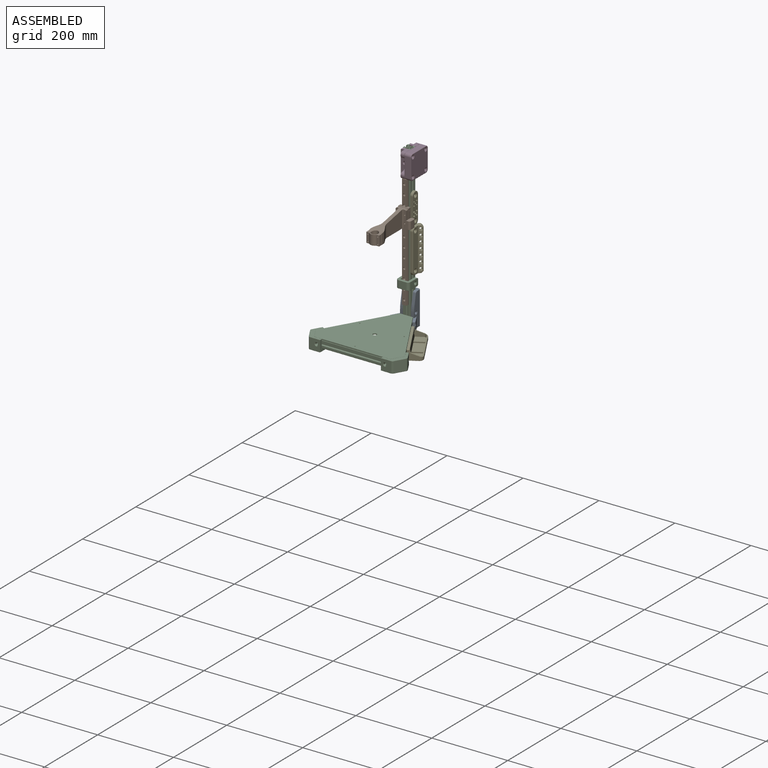
[diagram: assembled view]
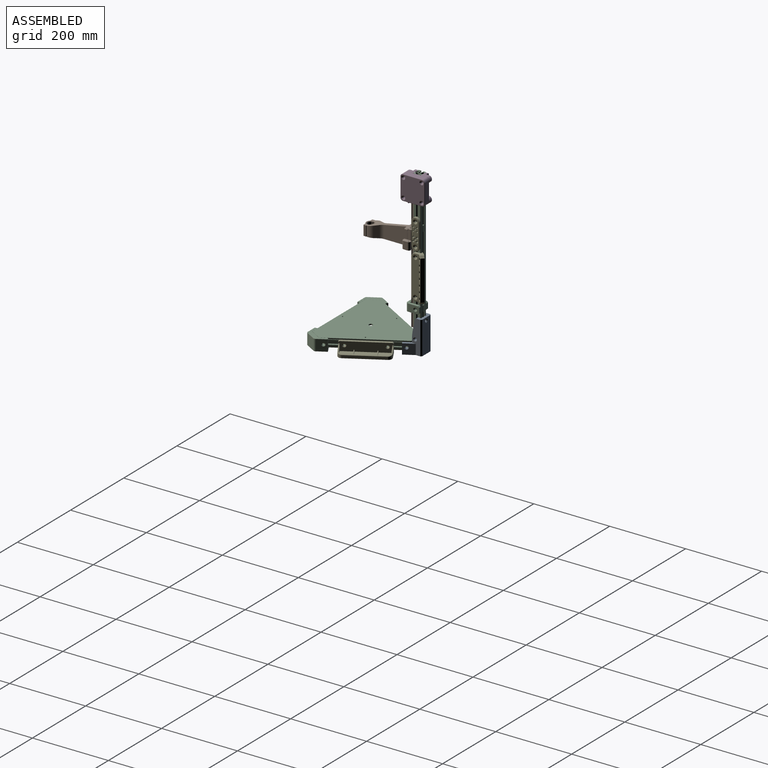
[diagram: assembled view, second angle]
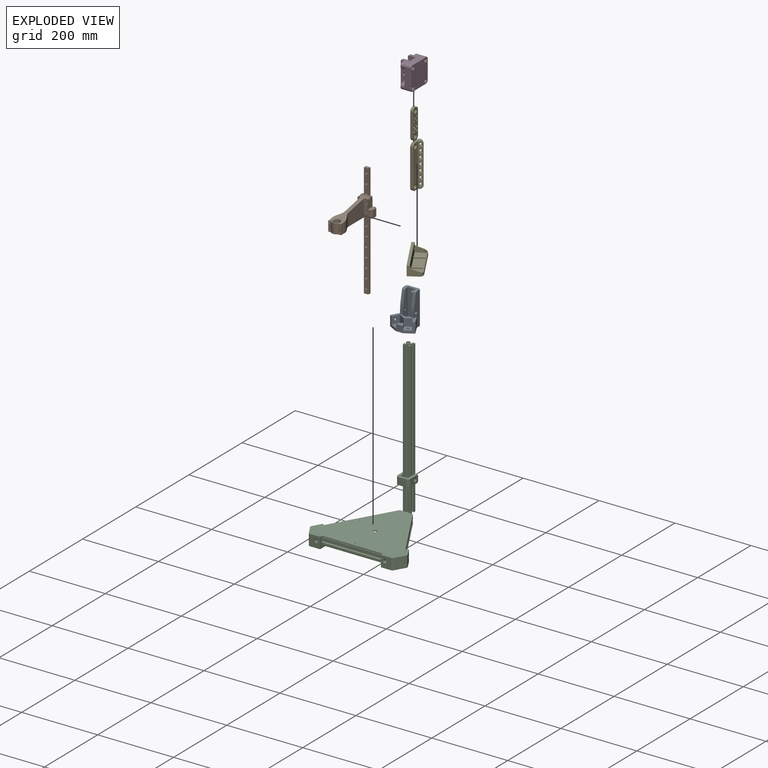
[diagram: exploded view]
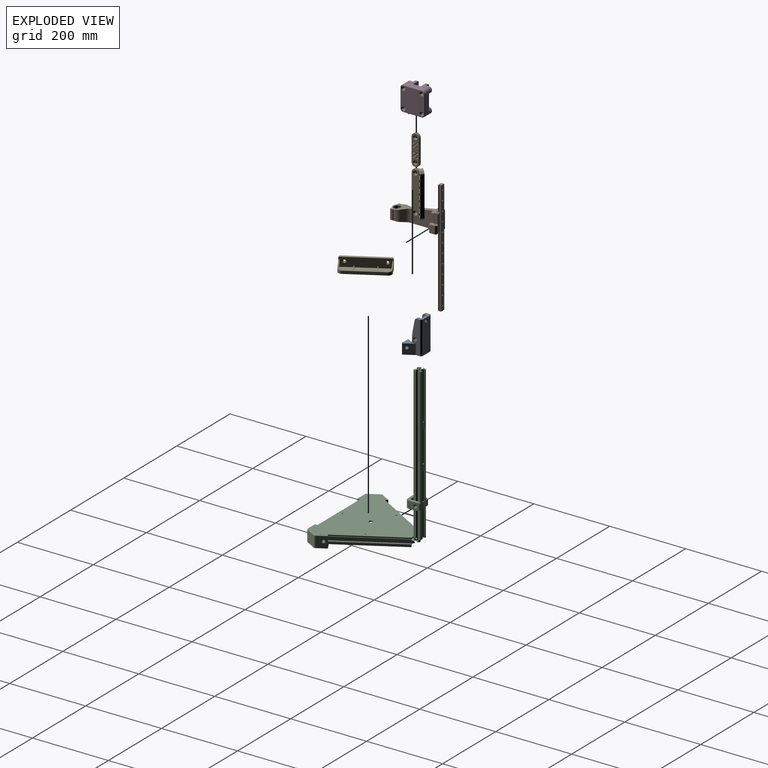
[diagram: exploded view, second angle]
FCSTD DOCUMENT  (FreeCAD 1.1R14555 (Git shallow))
Label: HeatSetInsertPress-V2
License: All rights reserved
LicenseURL: https://en.wikipedia.org/wiki/All_rights_reserved
objects: Sketcher::SketchObject×52, PartDesign::Chamfer×41, PartDesign::Pad×26, PartDesign::Fillet×26, PartDesign::Pocket×25, App::Point×21, PartDesign::Body×15, App::Link×8, App::Part×6, PartDesign::Mirrored×4, Part::Feature×4, PartDesign::ShapeBinder×3, PartDesign::Draft×3, PartDesign::PolarPattern×2, PartDesign::FeatureBase×1, App::DocumentObjectGroup×1, TechDraw::DrawSVGTemplate×1, TechDraw::DrawProjGroupItem×1, TechDraw::DrawProjGroup×1, TechDraw::DrawPage×1, +1 more types
note: 505 computed .brp shape members not serialized (recipe doc carries the construction recipe); baked Part::Feature solids carry a one-line shape summary decoded from their .brp

FEATURE [Sketcher::SketchObject] Sketch
  ArcFitTolerance = 1e-06
  AttachmentSupport = -> [XZ_Plane]
  ExternalTypes = [0]
  FullyConstrained = true
  MakeInternals = false
  MapMode = 5
  Placement = pos=(0,0,0) rot=(1,0,0;1.5708rad)
  sketch-geometry (5):
    g0: LineSegment StartX=-10 StartY=-10 StartZ=0 EndX=-10 EndY=10 EndZ=0
    g1: LineSegment StartX=-10 StartY=10 StartZ=0 EndX=10 EndY=10 EndZ=0
    g2: LineSegment StartX=10 StartY=10 StartZ=0 EndX=10 EndY=-10 EndZ=0
    g3: LineSegment StartX=10 StartY=-10 StartZ=0 EndX=-10 EndY=-10 EndZ=0
    g4: GeomPoint [constr] X=0 Y=-2e-16 Z=0
  constraints (12):
    c: Coincident(g0,g1)
    c: Coincident(g1,g2)
    c: Coincident(g2,g3)
    c: Coincident(g3,g0)
    c: Horizontal(g1)
    c: Horizontal(g3)
    c: Vertical(g0)
    c: Vertical(g2)
    c: Symmetric(g1,g0,g4)
    c: Coincident(g4,g-1)
    c: Equal(g2,g1)
    c: DistanceY(g2,g2) = 20
FEATURE [PartDesign::Pad] Pad
  AlongSketchNormal = false
  Direction = (0,-1,2e-16)
  Length = 200
  Length2 = 10
  Placement = pos=(0,0,0) rot=(1,0,0;1.5708rad)
  Profile = -> Sketch
  ReferenceAxis = -> Sketch [N_Axis]
  Refine = true
  SideType = 0
  Suppressed = false
  Type = 0
  Type2 = 0
FEATURE [Sketcher::SketchObject] Sketch001
  ArcFitTolerance = 1e-06
  AttachmentSupport = -> [XY_Plane001]
  ExternalTypes = [0]
  FullyConstrained = true
  MakeInternals = false
  MapMode = 5
  sketch-geometry (5):
    g0: LineSegment StartX=-10 StartY=-10 StartZ=0 EndX=-10 EndY=10 EndZ=0
    g1: LineSegment StartX=-10 StartY=10 StartZ=0 EndX=10 EndY=10 EndZ=0
    g2: LineSegment StartX=10 StartY=10 StartZ=0 EndX=10 EndY=-10 EndZ=0
    g3: LineSegment StartX=10 StartY=-10 StartZ=0 EndX=-10 EndY=-10 EndZ=0
    g4: GeomPoint [constr] X=0 Y=-1e-16 Z=0
  constraints (12):
    c: Coincident(g0,g1)
    c: Coincident(g1,g2)
    c: Coincident(g2,g3)
    c: Coincident(g3,g0)
    c: Horizontal(g1)
    c: Horizontal(g3)
    c: Vertical(g0)
    c: Vertical(g2)
    c: Symmetric(g1,g0,g4)
    c: Coincident(g4,g-1)
    c: Equal(g2,g1)
    c: DistanceX(g1,g1) = 20
FEATURE [PartDesign::Pad] Pad001
  AlongSketchNormal = false
  Direction = (0,0,1)
  Length = 400
  Length2 = 10
  Profile = -> Sketch001
  ReferenceAxis = -> Sketch001 [N_Axis]
  Refine = true
  SideType = 0
  Suppressed = false
  Type = 0
  Type2 = 0
FEATURE [App::Link] Link  label="Link(Profile 2020-200mm)"
  LinkPlacement = pos=(-8.66024,-15,-4.43e-14) rot=(0,0,-1;0.523599rad)
  LinkedObject = -> Body
  Placement = pos=(-8.66024,-15,-4.43e-14) rot=(0,0,-1;0.523599rad)
FEATURE [App::Link] Link001  label="Link001(Profile 2020-200mm)"
  LinkPlacement = pos=(8.66023,-15,-4.43e-14) rot=(0,0,1;0.523599rad)
  LinkedObject = -> Body
  Placement = pos=(8.66023,-15,-4.43e-14) rot=(0,0,1;0.523599rad)
FEATURE [Sketcher::SketchObject] Sketch002
  ArcFitTolerance = 1e-06
  ExternalTypes = [0]
  FullyConstrained = true
  MakeInternals = false
  sketch-geometry (7):
    g0: LineSegment StartX=0 StartY=0 StartZ=0 EndX=-111.547 EndY=-193.205 EndZ=0
    g1: LineSegment StartX=-111.547 StartY=-193.205 StartZ=0 EndX=111.547 EndY=-193.205 EndZ=0
    g2: LineSegment StartX=111.547 StartY=-193.205 StartZ=0 EndX=0 EndY=0 EndZ=0
    g3: LineSegment StartX=-100 StartY=-193.205 StartZ=0 EndX=0 EndY=-20 EndZ=0
    g4: LineSegment StartX=0 StartY=-20 StartZ=0 EndX=100 EndY=-193.205 EndZ=0
    g5: LineSegment StartX=100 StartY=-193.205 StartZ=0 EndX=108.66 EndY=-188.205 EndZ=0
    g6: LineSegment StartX=-100 StartY=-193.205 StartZ=0 EndX=-108.66 EndY=-188.205 EndZ=0
  constraints (21):
    c: Coincident(g0,g-1)
    c: Coincident(g1,g0)
    c: Horizontal(g1)
    c: Coincident(g2,g1)
    c: Coincident(g2,g0)
    c: Equal(g1,g2)
    c: Equal(g2,g0)
    c: PointOnObject(g3,g1)
    c: PointOnObject(g3,g-2)
    c: Coincident(g4,g3)
    c: PointOnObject(g4,g1)
    c: Equal(g4,g3)
    c: Coincident(g5,g4)
    c: PointOnObject(g5,g2)
    c: Perpendicular(g4,g5)
    c: Distance(g5) = 10
    c: Parallel(g4,g2)
    c: Distance(g3) = 200
    c: Coincident(g6,g3)
    c: PointOnObject(g6,g0)
    c: Perpendicular(g0,g6)
FEATURE [PartDesign::ShapeBinder] ShapeBinder
  Support = -> [Sketch002]
  TraceSupport = false
FEATURE [Sketcher::SketchObject] Sketch003
  ArcFitTolerance = 1e-06
  AttachmentSupport = -> [ShapeBinder]
  ExternalGeometry = -> [ShapeBinder]
  ExternalTypes = [0]
  FullyConstrained = true
  MakeInternals = false
  MapMode = 5
  sketch-geometry (9):
    g0: LineSegment StartX=-100 StartY=-193.205 StartZ=0 EndX=-117.321 EndY=-183.205 EndZ=0
    g1: LineSegment StartX=-117.321 StartY=-183.205 StartZ=0 EndX=-107.321 EndY=-165.885 EndZ=0
    g2: LineSegment StartX=-107.321 StartY=-165.885 StartZ=0 EndX=-113.383 EndY=-162.385 EndZ=0
    g3: LineSegment StartX=-113.383 StartY=-162.385 StartZ=0 EndX=-128.383 EndY=-188.365 EndZ=0
    g4: LineSegment StartX=-128.383 StartY=-188.365 StartZ=0 EndX=-110 EndY=-220.205 EndZ=0
    g5: LineSegment StartX=-110 StartY=-220.205 StartZ=0 EndX=-80 EndY=-220.205 EndZ=0
    g6: LineSegment StartX=-80 StartY=-220.205 StartZ=0 EndX=-80 EndY=-213.205 EndZ=0
    g7: LineSegment StartX=-80 StartY=-213.205 StartZ=0 EndX=-100 EndY=-213.205 EndZ=0
    g8: LineSegment StartX=-100 StartY=-213.205 StartZ=0 EndX=-100 EndY=-193.205 EndZ=0
  constraints (26):
    c: Coincident(g0,g-5)
    c: Coincident(g0,g1)
    c: Coincident(g1,g2)
    c: Coincident(g2,g3)
    c: Coincident(g3,g4)
    c: Coincident(g4,g5)
    c: Horizontal(g5)
    c: Coincident(g5,g6)
    c: Vertical(g6)
    c: Coincident(g6,g7)
    c: Horizontal(g7)
    c: Coincident(g7,g8)
    c: Coincident(g8,g0)
    c: Vertical(g8)
    c: PointOnObject(g-5,g0)
    c: Perpendicular(g1,g0)
    c: Equal(g1,g7)
    c: Equal(g6,g2)
    c: Perpendicular(g2,g1)
    c: Equal(g5,g3)
    c: Perpendicular(g2,g3)
    c: DistanceY(g6,g6) = 7
    c: Equal(g8,g0)
    c: DistanceY(g8,g8) = 20
    c: DistanceX(g7,g7) = 20
    c: DistanceX(g5,g5) = 30
FEATURE [PartDesign::Pad] Pad002
  AlongSketchNormal = false
  Direction = (0,0,1)
  Length = 20
  Length2 = 10
  Profile = -> Sketch003
  ReferenceAxis = -> Sketch003 [N_Axis]
  Refine = true
  SideType = 2
  Suppressed = false
  Type = 0
  Type2 = 0
FEATURE [Sketcher::SketchObject] Sketch004
  ArcFitTolerance = 1e-06
  AttachmentSupport = -> [Pad002]
  ExternalGeometry = -> [Pad002,ShapeBinder]
  ExternalTypes = [0]
  FullyConstrained = true
  MakeInternals = false
  MapMode = 5
  Placement = pos=(0,0,-10) rot=(1,0,0;3.14159rad)
  sketch-geometry (3):
    g0: LineSegment StartX=-113.383 StartY=162.385 StartZ=0 EndX=-90 EndY=175.885 EndZ=0
    g1: LineSegment StartX=-80 StartY=220.205 StartZ=0 EndX=-80 EndY=193.205 EndZ=0
    g2: LineSegment StartX=-90 StartY=175.885 StartZ=0 EndX=-80 EndY=193.205 EndZ=0
  constraints (8):
    c: Coincident(g0,g-4)
    c: Coincident(g1,g-3)
    c: Vertical(g1)
    c: Equal(g0,g1)
    c: Perpendicular(g-4,g0)
    c: Coincident(g2,g0)
    c: Coincident(g2,g1)
    c: PointOnObject(g1,g-6)
FEATURE [PartDesign::Pad] Pad003
  AlongSketchNormal = false
  BaseFeature = -> Pad002
  Direction = (0,0,-1)
  Length = 7
  Length2 = 10
  Profile = -> Sketch004
  ReferenceAxis = -> Sketch004 [N_Axis]
  Refine = true
  SideType = 0
  Suppressed = false
  Type = 0
  Type2 = 0
FEATURE [Sketcher::SketchObject] Sketch005
  ArcFitTolerance = 1e-06
  AttachmentSupport = -> [Pad003]
  ExternalGeometry = -> [Pad003]
  ExternalTypes = [0]
  FullyConstrained = true
  MakeInternals = false
  MapMode = 5
  Placement = pos=(0,0,-10) rot=(0,0,1;0rad)
  sketch-geometry (5):
    g0: LineSegment [constr] StartX=-90 StartY=-175.885 StartZ=0 EndX=-100 EndY=-193.205 EndZ=0
    g1: LineSegment [constr] StartX=-100 StartY=-193.205 StartZ=0 EndX=-80 EndY=-193.205 EndZ=0
    g2: LineSegment StartX=-90 StartY=-175.885 StartZ=0 EndX=-97.5 EndY=-188.875 EndZ=0
    g3: LineSegment StartX=-80 StartY=-193.205 StartZ=0 EndX=-95 EndY=-193.205 EndZ=0
    g4: LineSegment StartX=-95 StartY=-193.205 StartZ=0 EndX=-97.5 EndY=-188.875 EndZ=0
  constraints (12):
    c: Coincident(g0,g-3)
    c: Coincident(g0,g-5)
    c: Coincident(g1,g-5)
    c: Coincident(g1,g-3)
    c: Coincident(g2,g-3)
    c: PointOnObject(g2,g0)
    c: Coincident(g3,g-3)
    c: PointOnObject(g3,g1)
    c: Coincident(g4,g3)
    c: Coincident(g4,g2)
    c: Equal(g2,g3)
    c: Distance(g2) = 15
FEATURE [PartDesign::Pad] Pad004
  AlongSketchNormal = false
  BaseFeature = -> Pad003
  Direction = (0,0,1)
  Length = 10
  Length2 = 10
  Profile = -> Sketch005
  ReferenceAxis = -> Sketch005 [N_Axis]
  Refine = true
  SideType = 0
  Suppressed = false
  Type = 0
  Type2 = 0
FEATURE [Sketcher::SketchObject] Sketch006
  ArcFitTolerance = 1e-06
  AttachmentSupport = -> [Pad004]
  ExternalGeometry = -> [Pad004]
  ExternalTypes = [0]
  FullyConstrained = true
  MakeInternals = false
  MapMode = 5
  Placement = pos=(0,0,-10) rot=(0,0,1;0rad)
  sketch-geometry (6):
    g0: Circle CenterX=-103.66 CenterY=-179.545 CenterZ=0 NormalX=0 NormalY=0 NormalZ=1 AngleXU=0 Radius=2.7
    g1: Circle CenterX=-90 CenterY=-203.205 CenterZ=0 NormalX=0 NormalY=0 NormalZ=1 AngleXU=0 Radius=2.7
    g2: LineSegment [constr] StartX=-119.191 StartY=-204.285 StartZ=0 EndX=-85 EndY=-184.545 EndZ=0
    g3: LineSegment [constr] StartX=-100 StartY=-213.205 StartZ=0 EndX=-80 EndY=-193.205 EndZ=0
    g4: GeomPoint [constr] X=-85 Y=-184.545 Z=0
    g5: GeomPoint [constr] X=-119.191 Y=-204.285 Z=0
  constraints (10):
    c: Equal(g1,g0)
    c: Diameter(g0) = 5.4
    c: Symmetric(g-3,g-3,g2)
    c: Symmetric(g-4,g-4,g2)
    c: Symmetric(g1,g0,g2)
    c: Coincident(g3,g-5)
    c: Coincident(g3,g-3)
    c: Symmetric(g3,g3,g1)
    c: Coincident(g4,g2)
    c: Coincident(g5,g2)
FEATURE [PartDesign::Pocket] Pocket
  AlongSketchNormal = false
  BaseFeature = -> Pad004
  Direction = (0,0,-1)
  Length = 10
  Length2 = 10
  Profile = -> Sketch006
  ReferenceAxis = -> Sketch006 [N_Axis]
  Refine = true
  SideType = 0
  Suppressed = false
  Type = 0
  Type2 = 0
FEATURE [Sketcher::SketchObject] Sketch007
  ArcFitTolerance = 1e-06
  AttachmentSupport = -> [Pocket]
  ExternalGeometry = -> [Pocket]
  ExternalTypes = [0]
  FullyConstrained = true
  MakeInternals = false
  MapMode = 5
  Placement = pos=(-8.66025,5,0) rot=(0.774597,0.447214,0.447214;1.82348rad)
  sketch-geometry (1):
    g0: Circle CenterX=-207.321 CenterY=8.2e-15 CenterZ=0 NormalX=0 NormalY=0 NormalZ=1 AngleXU=0 Radius=2.7
  constraints (2):
    c: Diameter(g0) = 5.4
    c: Symmetric(g-4,g-3,g0)
FEATURE [Sketcher::SketchObject] Sketch008
  ArcFitTolerance = 1e-06
  AttachmentSupport = -> [Pocket]
  ExternalGeometry = -> [Pocket]
  ExternalTypes = [0]
  FullyConstrained = true
  MakeInternals = false
  MapMode = 5
  Placement = pos=(0,-213.205,0) rot=(0,0.707107,0.707107;3.14159rad)
  sketch-geometry (1):
    g0: Circle CenterX=90 CenterY=-1.6e-15 CenterZ=0 NormalX=0 NormalY=0 NormalZ=1 AngleXU=0 Radius=2.7
  constraints (2):
    c: Symmetric(g-3,g-4,g0)
    c: Diameter(g0) = 5.4
FEATURE [PartDesign::Pocket] Pocket001
  AlongSketchNormal = false
  BaseFeature = -> Pocket
  Direction = (-0.866025,0.5,1e-16)
  Length = 10
  Length2 = 10
  Profile = -> Sketch007
  ReferenceAxis = -> Sketch007 [N_Axis]
  Refine = true
  SideType = 0
  Suppressed = false
  Type = 0
  Type2 = 0
FEATURE [PartDesign::Pocket] Pocket002
  AlongSketchNormal = false
  BaseFeature = -> Pocket001
  Direction = (0,-1,2e-16)
  Length = 10
  Length2 = 10
  Profile = -> Sketch008
  ReferenceAxis = -> Sketch008 [N_Axis]
  Refine = true
  SideType = 0
  Suppressed = false
  Type = 0
  Type2 = 0
FEATURE [PartDesign::Chamfer] Chamfer
  Angle = 45
  Base = -> Pocket002 [Edge46,Edge32,Edge44,Edge52]
  BaseFeature = -> Pocket002
  ChamferType = 0
  FlipDirection = false
  Refine = true
  Size = 2
  Size2 = 1
  SupportTransform = false
  Suppressed = false
  UseAllEdges = false
FEATURE [PartDesign::Fillet] Fillet
  Base = -> Chamfer [Edge45,Edge43,Edge42,Edge47,Edge49,Edge9]
  BaseFeature = -> Chamfer
  Radius = 1
  Refine = true
  SupportTransform = false
  Suppressed = false
  UseAllEdges = false
FEATURE [PartDesign::Fillet] Fillet001
  Base = -> Fillet [Edge28]
  BaseFeature = -> Fillet
  Radius = 4
  Refine = true
  SupportTransform = false
  Suppressed = false
  UseAllEdges = false
FEATURE [PartDesign::Fillet] Fillet002
  Base = -> Fillet001 [Edge84,Edge78]
  BaseFeature = -> Fillet001
  Radius = 6
  Refine = true
  SupportTransform = false
  Suppressed = false
  UseAllEdges = false
FEATURE [PartDesign::Chamfer] Chamfer001
  Angle = 45
  Base = -> Fillet002 [Face16]
  BaseFeature = -> Fillet002
  ChamferType = 0
  FlipDirection = false
  Refine = true
  Size = 0.4
  Size2 = 1
  SupportTransform = false
  Suppressed = false
  UseAllEdges = false
FEATURE [PartDesign::Chamfer] Chamfer002
  Angle = 45
  Base = -> Chamfer001 [Edge82,Edge83,Edge50,Edge68]
  BaseFeature = -> Chamfer001
  ChamferType = 0
  FlipDirection = false
  Refine = true
  Size = 0.4
  Size2 = 1
  SupportTransform = false
  Suppressed = false
  UseAllEdges = false
FEATURE [App::Link] Link002  label="Link002(Coin)"
  LinkPlacement = pos=(-117.321,-203.205,-4.26e-14) rot=(0,0,1;2.0944rad)
  LinkedObject = -> Body003
  Placement = pos=(-117.321,-203.205,-4.26e-14) rot=(0,0,1;2.0944rad)
FEATURE [Sketcher::SketchObject] Sketch009
  ArcFitTolerance = 1e-06
  ExternalTypes = [0]
  FullyConstrained = true
  MakeInternals = false
  sketch-geometry (7):
    g0: LineSegment StartX=0 StartY=0 StartZ=0 EndX=-111.547 EndY=-193.205 EndZ=0
    g1: LineSegment StartX=-111.547 StartY=-193.205 StartZ=0 EndX=111.547 EndY=-193.205 EndZ=0
    g2: LineSegment StartX=111.547 StartY=-193.205 StartZ=0 EndX=0 EndY=0 EndZ=0
    g3: LineSegment StartX=-100 StartY=-193.205 StartZ=0 EndX=0 EndY=-20 EndZ=0
    g4: LineSegment StartX=0 StartY=-20 StartZ=0 EndX=100 EndY=-193.205 EndZ=0
    g5: LineSegment StartX=100 StartY=-193.205 StartZ=0 EndX=108.66 EndY=-188.205 EndZ=0
    g6: LineSegment StartX=-100 StartY=-193.205 StartZ=0 EndX=-108.66 EndY=-188.205 EndZ=0
  constraints (21):
    c: Coincident(g0,g-1)
    c: Coincident(g1,g0)
    c: Horizontal(g1)
    c: Coincident(g2,g1)
    c: Coincident(g2,g0)
    c: Equal(g1,g2)
    c: Equal(g2,g0)
    c: PointOnObject(g3,g1)
    c: PointOnObject(g3,g-2)
    c: Coincident(g4,g3)
    c: PointOnObject(g4,g1)
    c: Equal(g4,g3)
    c: Coincident(g5,g4)
    c: PointOnObject(g5,g2)
    c: Perpendicular(g4,g5)
    c: Distance(g5) = 10
    c: Parallel(g4,g2)
    c: Distance(g3) = 200
    c: Coincident(g6,g3)
    c: PointOnObject(g6,g0)
    c: Perpendicular(g0,g6)
FEATURE [PartDesign::Body] Body002  label="Squelette"
  AllowCompound = true
  Group = -> [Sketch002,Sketch009]
  Origin = -> Origin002
FEATURE [PartDesign::FeatureBase] Clone
  BaseFeature = -> Fillet
  Suppressed = false
FEATURE [PartDesign::Pad] Pad005
  AlongSketchNormal = false
  BaseFeature = -> Clone
  Direction = (-0.866025,-0.5,0)
  Length = 15
  Length2 = 10
  Profile = -> Clone [Face23]
  Refine = true
  SideType = 0
  Suppressed = false
  Type = 0
  Type2 = 0
FEATURE [Sketcher::SketchObject] Sketch010
  ArcFitTolerance = 1e-06
  AttachmentSupport = -> [Pad005]
  ExternalGeometry = -> [Pad005]
  ExternalTypes = [0]
  FullyConstrained = true
  MakeInternals = false
  MapMode = 5
  Placement = pos=(0,0,10) rot=(0,0,1;0rad)
  sketch-geometry (15):
    g0: LineSegment [constr] StartX=-131.12 StartY=-199.625 StartZ=0 EndX=-113.799 EndY=-189.625 EndZ=0
    g1: LineSegment [constr] StartX=-113.799 StartY=-189.625 StartZ=0 EndX=-103.799 EndY=-206.945 EndZ=0
    g2: LineSegment [constr] StartX=-103.799 StartY=-206.945 StartZ=0 EndX=-121.12 EndY=-216.945 EndZ=0
    g3: LineSegment [constr] StartX=-121.12 StartY=-216.945 StartZ=0 EndX=-131.12 EndY=-199.625 EndZ=0
    g4: LineSegment [constr] StartX=-131.12 StartY=-199.625 StartZ=0 EndX=-141.373 EndY=-195.865 EndZ=0
    g5: LineSegment [constr] StartX=-121.12 StartY=-216.945 StartZ=0 EndX=-122.99 EndY=-227.705 EndZ=0
    g6: LineSegment [constr] StartX=-121.12 StartY=-216.945 StartZ=0 EndX=-127.182 EndY=-220.445 EndZ=0
    g7: LineSegment StartX=-141.373 StartY=-195.865 StartZ=0 EndX=-119.722 EndY=-183.365 EndZ=0
    g8: LineSegment StartX=-119.722 StartY=-183.365 StartZ=0 EndX=-115.531 EndY=-190.625 EndZ=0
    g9: LineSegment StartX=-115.531 StartY=-190.625 StartZ=0 EndX=-131.12 EndY=-199.625 EndZ=0
    g10: LineSegment StartX=-131.12 StartY=-199.625 StartZ=0 EndX=-121.12 EndY=-216.945 EndZ=0
    g11: LineSegment StartX=-121.12 StartY=-216.945 StartZ=0 EndX=-105.531 EndY=-207.945 EndZ=0
    g12: LineSegment StartX=-105.531 StartY=-207.945 StartZ=0 EndX=-101.34 EndY=-215.205 EndZ=0
    g13: LineSegment StartX=-101.34 StartY=-215.205 StartZ=0 EndX=-122.99 EndY=-227.705 EndZ=0
    g14: LineSegment StartX=-122.99 StartY=-227.705 StartZ=0 EndX=-141.373 EndY=-195.865 EndZ=0
  constraints (39):
    c: Coincident(g0,g1)
    c: Coincident(g1,g2)
    c: Coincident(g2,g3)
    c: Coincident(g3,g0)
    c: Parallel(g0,g2)
    c: Parallel(g1,g3)
    c: Equal(g0,g1)
    c: Perpendicular(g1,g0)
    c: Distance(g2) = 20
    c: Parallel(g-3,g3)
    c: Coincident(g4,g0)
    c: Coincident(g4,g-5)
    c: Coincident(g5,g2)
    c: Coincident(g5,g-4)
    c: Equal(g5,g4)
    c: Coincident(g6,g2)
    c: PointOnObject(g6,g-3)
    c: Perpendicular(g-3,g6)
    c: Distance(g6) = 7
    c: Coincident(g7,g-5)
    c: Coincident(g8,g7)
    c: PointOnObject(g8,g0)
    c: Coincident(g8,g9)
    c: Coincident(g9,g0)
    c: Coincident(g9,g10)
    c: Coincident(g10,g2)
    c: Coincident(g10,g11)
    c: PointOnObject(g11,g2)
    c: Coincident(g11,g12)
    c: Coincident(g12,g13)
    c: Coincident(g13,g-4)
    c: Coincident(g13,g14)
    c: Coincident(g14,g7)
    c: PointOnObject(g-4,g13)
    c: Equal(g13,g7)
    c: Perpendicular(g13,g12)
    c: Perpendicular(g7,g8)
    c: PointOnObject(g-5,g7)
    c: Distance(g9) = 18
FEATURE [PartDesign::Pad] Pad006
  AlongSketchNormal = false
  BaseFeature = -> Pad005
  Direction = (0,0,1)
  Length = 60
  Length2 = 10
  Profile = -> Sketch010
  ReferenceAxis = -> Sketch010 [N_Axis]
  Refine = true
  SideType = 0
  Suppressed = false
  Type = 0
  Type2 = 0
FEATURE [Sketcher::SketchObject] Sketch011
  ArcFitTolerance = 1e-06
  AttachmentSupport = -> [Pad006]
  ExternalGeometry = -> [Pad006]
  ExternalTypes = [0]
  FullyConstrained = true
  MakeInternals = false
  MapMode = 5
  Placement = pos=(0,0,10) rot=(0,0,1;0rad)
  sketch-geometry (4):
    g0: LineSegment StartX=-131.12 StartY=-199.625 StartZ=0 EndX=-113.799 EndY=-189.625 EndZ=0
    g1: LineSegment StartX=-113.799 StartY=-189.625 StartZ=0 EndX=-103.799 EndY=-206.945 EndZ=0
    g2: LineSegment StartX=-103.799 StartY=-206.945 StartZ=0 EndX=-121.12 EndY=-216.945 EndZ=0
    g3: LineSegment StartX=-121.12 StartY=-216.945 StartZ=0 EndX=-131.12 EndY=-199.625 EndZ=0
  constraints (11):
    c: Coincident(g0,g1)
    c: Coincident(g1,g2)
    c: Coincident(g2,g3)
    c: Coincident(g3,g0)
    c: Parallel(g0,g2)
    c: Parallel(g1,g3)
    c: Perpendicular(g1,g0)
    c: Coincident(g0,g-3)
    c: PointOnObject(g1,g-4)
    c: PointOnObject(g0,g-3)
    c: Equal(g1,g0)
FEATURE [PartDesign::Pocket] Pocket003
  AlongSketchNormal = false
  BaseFeature = -> Pad006
  Direction = (0,0,-1)
  Length = 10
  Length2 = 10
  Profile = -> Sketch011
  ReferenceAxis = -> Sketch011 [N_Axis]
  Refine = true
  SideType = 0
  Suppressed = false
  Type = 0
  Type2 = 0
FEATURE [Sketcher::SketchObject] Sketch012
  ArcFitTolerance = 1e-06
  AttachmentSupport = -> [Pocket003]
  ExternalGeometry = -> [Pocket003]
  ExternalTypes = [0]
  FullyConstrained = true
  MakeInternals = false
  MapMode = 5
  sketch-geometry (5):
    g0: LineSegment StartX=-131.529 StartY=-199.515 StartZ=0 EndX=-121.229 EndY=-217.355 EndZ=0
    g1: LineSegment StartX=-121.229 StartY=-217.355 StartZ=0 EndX=-103.389 EndY=-207.055 EndZ=0
    g2: LineSegment StartX=-103.389 StartY=-207.055 StartZ=0 EndX=-113.689 EndY=-189.215 EndZ=0
    g3: LineSegment StartX=-113.689 StartY=-189.215 StartZ=0 EndX=-131.529 EndY=-199.515 EndZ=0
    g4: GeomPoint [constr] X=-117.459 Y=-203.285 Z=0
  constraints (12):
    c: Coincident(g0,g1)
    c: Coincident(g1,g2)
    c: Coincident(g2,g3)
    c: Coincident(g3,g0)
    c: Parallel(g1,g3)
    c: Parallel(g0,g2)
    c: Symmetric(g1,g0,g4)
    c: Perpendicular(g0,g1)
    c: Equal(g2,g3)
    c: Symmetric(g-4,g-3,g4)
    c: Parallel(g2,g-3)
    c: Distance(g3) = 20.6
FEATURE [PartDesign::Pocket] Pocket004
  AlongSketchNormal = false
  BaseFeature = -> Pocket003
  Direction = (0,0,-1)
  Length = 77
  Length2 = 10
  Profile = -> Sketch012
  ReferenceAxis = -> Sketch012 [N_Axis]
  Refine = true
  Reversed = true
  SideType = 0
  Suppressed = false
  Type = 0
  Type2 = 0
FEATURE [Sketcher::SketchObject] Sketch013
  ArcFitTolerance = 1e-06
  AttachmentSupport = -> [Pocket004]
  ExternalGeometry = -> [Pocket004]
  ExternalTypes = [0]
  FullyConstrained = true
  MakeInternals = false
  MapMode = 5
  Placement = pos=(-185.04,-106.833,0) rot=(0.377964,0.654654,0.654654;2.41886rad)
  sketch-geometry (2):
    g0: Circle CenterX=-117.321 CenterY=62 CenterZ=0 NormalX=0 NormalY=0 NormalZ=1 AngleXU=0 Radius=2.7
    g1: LineSegment [constr] StartX=-117.321 StartY=62 StartZ=0 EndX=-117.321 EndY=70 EndZ=0
  constraints (5):
    c: Diameter(g0) = 5.4
    c: Coincident(g1,g0)
    c: Vertical(g1)
    c: Symmetric(g-3,g-3,g1)
    c: DistanceY(g1,g1) = 8
FEATURE [PartDesign::Pocket] Pocket005
  AlongSketchNormal = false
  BaseFeature = -> Pocket004
  Direction = (-0.866025,-0.5,-2e-16)
  Length = 14
  Length2 = 10
  Profile = -> Sketch013
  ReferenceAxis = -> Sketch013 [N_Axis]
  Refine = true
  SideType = 0
  Suppressed = false
  Type = 0
  Type2 = 0
FEATURE [Sketcher::SketchObject] Sketch014
  ArcFitTolerance = 1e-06
  AttachmentSupport = -> [Pocket005]
  ExternalGeometry = -> [Pocket005]
  ExternalTypes = [0]
  FullyConstrained = true
  MakeInternals = false
  MapMode = 5
  Placement = pos=(53.5103,-92.6825,0) rot=(0.935113,0.250563,0.250563;1.63783rad)
  sketch-geometry (2):
    g0: Circle CenterX=-203.365 CenterY=20 CenterZ=0 NormalX=0 NormalY=0 NormalZ=1 AngleXU=0 Radius=2.7
    g1: LineSegment [constr] StartX=-203.365 StartY=-3.6e-15 StartZ=0 EndX=-203.365 EndY=20 EndZ=0
  constraints (5):
    c: Diameter(g0) = 5.4
    c: Coincident(g1,g0)
    c: Vertical(g1)
    c: Symmetric(g-3,g-3,g1)
    c: DistanceY(g1,g1) = 20
FEATURE [PartDesign::Pocket] Pocket006
  AlongSketchNormal = false
  BaseFeature = -> Pocket005
  Direction = (-0.5,0.866025,0)
  Length = 104
  Length2 = 10
  Profile = -> Sketch014
  ReferenceAxis = -> Sketch014 [N_Axis]
  Refine = true
  SideType = 2
  Suppressed = false
  Type = 0
  Type2 = 0
FEATURE [PartDesign::Chamfer] Chamfer003
  Angle = 45
  Base = -> Pocket006 [Edge83,Edge97]
  BaseFeature = -> Pocket006
  ChamferType = 1
  FlipDirection = false
  Refine = true
  Size = 40
  Size2 = 8
  SupportTransform = false
  Suppressed = false
  UseAllEdges = false
FEATURE [PartDesign::Fillet] Fillet003
  Base = -> Chamfer003 [Edge30,Edge13]
  BaseFeature = -> Chamfer003
  Radius = 5
  Refine = true
  SupportTransform = false
  Suppressed = false
  UseAllEdges = false
FEATURE [PartDesign::Fillet] Fillet004
  Base = -> Fillet003 [Edge12,Edge87]
  BaseFeature = -> Fillet003
  Radius = 100
  Refine = true
  SupportTransform = false
  Suppressed = false
  UseAllEdges = false
FEATURE [PartDesign::Chamfer] Chamfer004
  Angle = 45
  Base = -> Fillet004 [Edge7,Edge42]
  BaseFeature = -> Fillet004
  ChamferType = 0
  FlipDirection = false
  Refine = true
  Size = 3
  Size2 = 1
  SupportTransform = false
  Suppressed = false
  UseAllEdges = false
FEATURE [PartDesign::Chamfer] Chamfer005
  Angle = 45
  Base = -> Chamfer004 [Edge10,Edge69,Edge65]
  BaseFeature = -> Chamfer004
  ChamferType = 0
  FlipDirection = false
  Refine = true
  Size = 2
  Size2 = 1
  SupportTransform = false
  Suppressed = false
  UseAllEdges = false
FEATURE [PartDesign::Chamfer] Chamfer006
  Angle = 45
  Base = -> Chamfer005 [Face6]
  BaseFeature = -> Chamfer005
  ChamferType = 0
  FlipDirection = false
  Refine = true
  Size = 0.4
  Size2 = 1
  SupportTransform = false
  Suppressed = false
  UseAllEdges = false
FEATURE [PartDesign::Body] Body004  label="CoinLong"
  AllowCompound = true
  BaseFeature = -> Fillet
  Group = -> [Clone,Pad005,Sketch010,Pad006,Sketch011,Pocket003,Sketch012,Pocket004,Sketch013,Pocket005,Sketch014,Pocket006,Chamfer003,Fillet003,Fillet004,Chamfer004,Chamfer005,Chamfer006]
  Origin = -> Origin004
  Placement = pos=(117.303,-202.825,0) rot=(0,0,1;4.18879rad)
  Tip = -> Chamfer006
FEATURE [Sketcher::SketchObject] Sketch015
  ArcFitTolerance = 1e-06
  AttachmentSupport = -> [YZ_Plane005]
  ExternalTypes = [0]
  FullyConstrained = true
  MakeInternals = false
  MapMode = 5
  Placement = pos=(0,0,0) rot=(0.57735,0.57735,0.57735;2.0944rad)
  sketch-geometry (14):
    g0: LineSegment StartX=-32 StartY=-32 StartZ=0 EndX=-32 EndY=32 EndZ=0
    g1: LineSegment StartX=-32 StartY=32 StartZ=0 EndX=32 EndY=32 EndZ=0
    g2: LineSegment StartX=32 StartY=32 StartZ=0 EndX=32 EndY=-32 EndZ=0
    g3: LineSegment StartX=32 StartY=-32 StartZ=0 EndX=-32 EndY=-32 EndZ=0
    g4: GeomPoint [constr] X=0 Y=0 Z=0
    g5: Circle CenterX=-24 CenterY=24 CenterZ=0 NormalX=0 NormalY=0 NormalZ=1 AngleXU=0 Radius=2.25
    g6: Circle CenterX=-24 CenterY=-24 CenterZ=0 NormalX=0 NormalY=0 NormalZ=1 AngleXU=0 Radius=2.25
    g7: Circle CenterX=24 CenterY=-24 CenterZ=0 NormalX=0 NormalY=0 NormalZ=1 AngleXU=0 Radius=2.25
    g8: Circle CenterX=24 CenterY=24 CenterZ=0 NormalX=0 NormalY=0 NormalZ=1 AngleXU=0 Radius=2.25
    g9: LineSegment [constr] StartX=-24 StartY=-24 StartZ=0 EndX=-24 EndY=24 EndZ=0
    g10: LineSegment [constr] StartX=-24 StartY=24 StartZ=0 EndX=24 EndY=24 EndZ=0
    g11: LineSegment [constr] StartX=24 StartY=24 StartZ=0 EndX=24 EndY=-24 EndZ=0
    g12: LineSegment [constr] StartX=24 StartY=-24 StartZ=0 EndX=-24 EndY=-24 EndZ=0
    g13: GeomPoint [constr] X=0 Y=0 Z=0
  constraints (32):
    c: Coincident(g0,g1)
    c: Coincident(g1,g2)
    c: Coincident(g2,g3)
    c: Coincident(g3,g0)
    c: Horizontal(g1)
    c: Horizontal(g3)
    c: Vertical(g0)
    c: Vertical(g2)
    c: Symmetric(g1,g0,g4)
    c: Coincident(g4,g-1)
    c: Equal(g2,g1)
    c: DistanceY(g2,g2) = 64
    c: Equal(g8,g5)
    c: Equal(g8,g6)
    c: Equal(g8,g7)
    c: Diameter(g8) = 4.5
    c: Coincident(g9,g10)
    c: Coincident(g10,g11)
    c: Coincident(g11,g12)
    c: Coincident(g12,g9)
    c: Horizontal(g10)
    c: Horizontal(g12)
    c: Vertical(g9)
    c: Vertical(g11)
    c: Symmetric(g10,g9,g13)
    c: Coincident(g13,g4)
    c: Coincident(g10,g8)
    c: Coincident(g11,g7)
    c: Coincident(g6,g9)
    c: Coincident(g5,g9)
    c: Equal(g11,g10)
    c: DistanceY(g11,g11) = 48
FEATURE [PartDesign::Pad] Pad007
  AlongSketchNormal = false
  Direction = (1,0,0)
  Length = 17.5
  Length2 = 10
  Placement = pos=(0,0,0) rot=(1,1,1;2.0944rad)
  Profile = -> Sketch015
  ReferenceAxis = -> Sketch015 [N_Axis]
  Refine = true
  SideType = 2
  Suppressed = false
  Type = 0
  Type2 = 0
FEATURE [PartDesign::Fillet] Fillet005
  Base = -> Pad007 [Edge2,Edge5,Edge8,Edge1]
  BaseFeature = -> Pad007
  Placement = pos=(0,0,0) rot=(1,1,1;2.0944rad)
  Radius = 7
  Refine = true
  SupportTransform = false
  Suppressed = false
  UseAllEdges = false
FEATURE [Sketcher::SketchObject] Sketch016
  ArcFitTolerance = 1e-06
  AttachmentOffset = pos=(0,0,0) rot=(0,0,1;1.5708rad)
  AttachmentSupport = -> [Fillet005]
  ExternalTypes = [0]
  FullyConstrained = true
  MakeInternals = false
  MapMode = 5
  Placement = pos=(3.6e-15,-1.07e-14,-32) rot=(1,0,0;3.14159rad)
  sketch-geometry (1):
    g0: Circle CenterX=0 CenterY=16 CenterZ=0 NormalX=0 NormalY=0 NormalZ=1 AngleXU=0 Radius=2
  constraints (3):
    c: PointOnObject(g0,g-2)
    c: Diameter(g0) = 4
    c: DistanceY(g0,g-3) = 16
FEATURE [PartDesign::Pad] Pad008
  AlongSketchNormal = false
  BaseFeature = -> Fillet005
  Direction = (0,0,-1)
  Length = 5
  Length2 = 10
  Placement = pos=(0,0,0) rot=(1,1,1;2.0944rad)
  Profile = -> Sketch016
  ReferenceAxis = -> Sketch016 [N_Axis]
  Refine = true
  SideType = 0
  Suppressed = false
  Type = 0
  Type2 = 0
FEATURE [Sketcher::SketchObject] Sketch017
  ArcFitTolerance = 1e-06
  AttachmentSupport = -> [XY_Plane006]
  ExternalTypes = [0]
  FullyConstrained = true
  MakeInternals = false
  MapMode = 5
  sketch-geometry (5):
    g0: LineSegment StartX=-10 StartY=-17 StartZ=0 EndX=-10 EndY=-10 EndZ=0
    g1: LineSegment StartX=-10 StartY=-10 StartZ=0 EndX=10 EndY=-10 EndZ=0
    g2: LineSegment StartX=10 StartY=-10 StartZ=0 EndX=10 EndY=-17 EndZ=0
    g3: LineSegment StartX=10 StartY=-17 StartZ=0 EndX=-10 EndY=-17 EndZ=0
    g4: GeomPoint [constr] X=0 Y=-13.5 Z=0
  constraints (13):
    c: Coincident(g0,g1)
    c: Coincident(g1,g2)
    c: Coincident(g2,g3)
    c: Coincident(g3,g0)
    c: Horizontal(g1)
    c: Horizontal(g3)
    c: Vertical(g0)
    c: Vertical(g2)
    c: Symmetric(g1,g0,g4)
    c: PointOnObject(g4,g-2)
    c: DistanceY(g0,g0) = 7
    c: DistanceY(g1,g-1) = 10
    c: DistanceX(g3,g3) = 20
FEATURE [PartDesign::Pad] Pad009
  AlongSketchNormal = false
  Direction = (0,0,1)
  Length = 64
  Length2 = 10
  Profile = -> Sketch017
  ReferenceAxis = -> Sketch017 [N_Axis]
  Refine = true
  SideType = 2
  Suppressed = false
  Type = 0
  Type2 = 0
FEATURE [Sketcher::SketchObject] Sketch018
  ArcFitTolerance = 1e-06
  AttachmentSupport = -> [XZ_Plane006]
  ExternalTypes = [0]
  FullyConstrained = true
  MakeInternals = false
  MapMode = 5
  Placement = pos=(0,0,0) rot=(1,0,0;1.5708rad)
  sketch-geometry (1):
    g0: Circle CenterX=0 CenterY=0 CenterZ=0 NormalX=0 NormalY=0 NormalZ=1 AngleXU=0 Radius=2.7
  constraints (2):
    c: Coincident(g0,g-1)
    c: Diameter(g0) = 5.4
FEATURE [PartDesign::Pocket] Pocket007
  AlongSketchNormal = false
  BaseFeature = -> Pad009
  Direction = (0,1,-2e-16)
  Length = 5
  Length2 = 10
  Profile = -> Sketch018
  ReferenceAxis = -> Sketch018 [N_Axis]
  Refine = true
  Reversed = true
  SideType = 0
  Suppressed = false
  Type = 1
  Type2 = 0
FEATURE [PartDesign::Chamfer] Chamfer007
  Angle = 45
  Base = -> Pocket007 [Edge8]
  BaseFeature = -> Pocket007
  ChamferType = 0
  FlipDirection = false
  Refine = true
  Size = 2
  Size2 = 1
  SupportTransform = false
  Suppressed = false
  UseAllEdges = false
FEATURE [Sketcher::SketchObject] Sketch019
  ArcFitTolerance = 1e-06
  AttachmentSupport = -> [Chamfer007]
  ExternalGeometry = -> [Chamfer007]
  ExternalTypes = [0]
  FullyConstrained = true
  MakeInternals = false
  MapMode = 5
  Placement = pos=(10,0,0) rot=(0.57735,0.57735,0.57735;2.0944rad)
  sketch-geometry (5):
    g0: LineSegment StartX=-17 StartY=32 StartZ=0 EndX=-32 EndY=32 EndZ=0
    g1: LineSegment StartX=-32 StartY=32 StartZ=0 EndX=-32 EndY=17 EndZ=0
    g2: LineSegment StartX=-32 StartY=17 StartZ=0 EndX=-17 EndY=17 EndZ=0
    g3: LineSegment StartX=-17 StartY=17 StartZ=0 EndX=-17 EndY=32 EndZ=0
    g4: Circle CenterX=-24 CenterY=24 CenterZ=0 NormalX=0 NormalY=0 NormalZ=1 AngleXU=0 Radius=2.2
  constraints (13):
    c: Coincident(g0,g1)
    c: Coincident(g1,g2)
    c: Coincident(g2,g3)
    c: Coincident(g3,g0)
    c: Horizontal(g0)
    c: Horizontal(g2)
    c: Vertical(g1)
    c: Vertical(g3)
    c: Coincident(g0,g-3)
    c: Equal(g2,g1)
    c: DistanceX(g0,g-1) = 32
    c: Coincident(g4,g-4)
    c: Diameter(g4) = 4.4
FEATURE [PartDesign::Pad] Pad010
  AlongSketchNormal = false
  BaseFeature = -> Chamfer007
  Direction = (1,0,0)
  Length = 10
  Length2 = 10
  Profile = -> Sketch019
  ReferenceAxis = -> Sketch019 [N_Axis]
  Refine = true
  Reversed = true
  SideType = 0
  Suppressed = false
  Type = 0
  Type2 = 0
FEATURE [PartDesign::Mirrored] Mirrored
  BaseFeature = -> Pad010
  MirrorPlane = -> XY_Plane006
  Originals = -> [Pad010]
  Refine = true
  Suppressed = false
  TransformMode = 0
FEATURE [PartDesign::Fillet] Fillet006
  Base = -> Mirrored [Edge36,Edge14,Edge22,Edge20]
  BaseFeature = -> Mirrored
  Radius = 7
  Refine = true
  SupportTransform = false
  Suppressed = false
  UseAllEdges = false
FEATURE [PartDesign::Fillet] Fillet007
  Base = -> Fillet006 [Edge17,Edge19]
  BaseFeature = -> Fillet006
  Radius = 6
  Refine = true
  SupportTransform = false
  Suppressed = false
  UseAllEdges = false
FEATURE [PartDesign::Chamfer] Chamfer008
  Angle = 45
  Base = -> Fillet007 [Edge9,Edge49]
  BaseFeature = -> Fillet007
  ChamferType = 0
  FlipDirection = false
  Refine = true
  Size = 0.4
  Size2 = 1
  SupportTransform = false
  Suppressed = false
  UseAllEdges = false
FEATURE [PartDesign::Chamfer] Chamfer009
  Angle = 45
  Base = -> Chamfer008 [Edge32,Edge54]
  BaseFeature = -> Chamfer008
  ChamferType = 0
  FlipDirection = false
  Refine = true
  Size = 2
  Size2 = 1
  SupportTransform = false
  Suppressed = false
  UseAllEdges = false
FEATURE [PartDesign::Chamfer] Chamfer010
  Angle = 45
  Base = -> Chamfer009 [Edge58]
  BaseFeature = -> Chamfer009
  ChamferType = 0
  FlipDirection = false
  Refine = true
  Size = 0.4
  Size2 = 1
  SupportTransform = false
  Suppressed = false
  UseAllEdges = false
FEATURE [PartDesign::Chamfer] Chamfer011
  Angle = 45
  Base = -> Chamfer010 [Face8]
  BaseFeature = -> Chamfer010
  ChamferType = 0
  FlipDirection = false
  Refine = true
  Size = 0.4
  Size2 = 1
  SupportTransform = false
  Suppressed = false
  UseAllEdges = false
FEATURE [PartDesign::Body] Body006  label="EquerreFermePorte"
  AllowCompound = true
  Group = -> [Sketch017,Pad009,Sketch018,Pocket007,Chamfer007,Sketch019,Pad010,Mirrored,Fillet006,Fillet007,Chamfer008,Chamfer009,Chamfer010,Chamfer011]
  Origin = -> Origin006
  Placement = pos=(0,0,378) rot=(0,0,1;0rad)
  Tip = -> Chamfer011
FEATURE [App::Link] Link003  label="Link003(EquerreFermePorte)"
  LinkPlacement = pos=(0,-1.3642e-12,378) rot=(1,0,0;3.14159rad)
  LinkedObject = -> Body006
  Placement = pos=(0,-1.3642e-12,378) rot=(1,0,0;3.14159rad)
FEATURE [Part::Feature] Solid  label="Hiwin rail MGN12R"
  shape: bbox 300 x 12 x 8 mm, 66 faces (baked)
FEATURE [Part::Feature] Solid001  label="MGN12H_Body"
  shape: bbox 27 x 10.2 x 48.24 mm, 183 faces (baked)
FEATURE [Part::Feature] Solid002  label="MGN12H_EndCap"
  Placement = pos=(5.7441e-12,8.41e-14,21.2) rot=(0,1,0;3.14159rad)
  shape: bbox 26.8 x 9.4 x 5 mm, 23 faces (baked)
FEATURE [App::Link] Link004  label="MGN12H_EndCap"
  LinkPlacement = pos=(-7.5658e-12,-8.59e-14,-16.2) rot=(0,1,0;3.14159rad)
  LinkedObject = -> Solid002
  Placement = pos=(-7.5658e-12,-8.59e-14,-16.2) rot=(0,1,0;3.14159rad)
FEATURE [Part::Feature] Solid003  label="MGN12H_Seal"
  Placement = pos=(-5.6e-15,-0.3,22.7) rot=(0,0,1;0rad)
  shape: bbox 26.8 x 9.4 x 1.7 mm, 155 faces (baked)
FEATURE [App::Link] Link005  label="MGN12H_Seal"
  LinkPlacement = pos=(-7.2971e-12,-0.3,-22.7) rot=(0,1,0;3.14159rad)
  LinkedObject = -> Solid003
  Placement = pos=(-7.2971e-12,-0.3,-22.7) rot=(0,1,0;3.14159rad)
FEATURE [Sketcher::SketchObject] Sketch020
  ArcFitTolerance = 1e-06
  AttachmentSupport = -> [XY_Plane009]
  ExternalTypes = [0]
  FullyConstrained = true
  MakeInternals = false
  MapMode = 5
  sketch-geometry (17):
    g0: LineSegment StartX=-5 StartY=93.8034 StartZ=0 EndX=-5 EndY=0 EndZ=0
    g1: LineSegment StartX=-5 StartY=0 StartZ=0 EndX=5 EndY=0 EndZ=0
    g2: LineSegment StartX=5 StartY=0 StartZ=0 EndX=5 EndY=93.8034 EndZ=0
    g3: LineSegment [constr] StartX=5 StartY=93.8034 StartZ=0 EndX=-5 EndY=93.8034 EndZ=0
    g4: GeomPoint [constr] X=0 Y=46.9017 Z=0
    g5: LineSegment [constr] StartX=111.547 StartY=170.205 StartZ=0 EndX=-55.7735 EndY=73.6025 EndZ=0
    g6: LineSegment [constr] StartX=-111.547 StartY=170.205 StartZ=0 EndX=55.7735 EndY=73.6025 EndZ=0
    g7: GeomPoint [constr] X=0 Y=105.803 Z=0
    g8: ArcOfCircle CenterX=0 CenterY=105.803 CenterZ=0 NormalX=0 NormalY=0 NormalZ=1 AngleXU=0 Radius=9 StartAngle=3.14159 EndAngle=6.28319
    g9: LineSegment StartX=-9 StartY=105.803 StartZ=0 EndX=-17 EndY=105.803 EndZ=0
    g10: LineSegment StartX=9 StartY=105.803 StartZ=0 EndX=17 EndY=105.803 EndZ=0
    g11: LineSegment [constr] StartX=-17 StartY=105.803 StartZ=0 EndX=17 EndY=105.803 EndZ=0
    g12: LineSegment StartX=-17 StartY=105.803 StartZ=0 EndX=-17 EndY=93.8034 EndZ=0
    g13: LineSegment StartX=17 StartY=105.803 StartZ=0 EndX=17 EndY=93.8034 EndZ=0
    g14: LineSegment [constr] StartX=-17 StartY=93.8034 StartZ=0 EndX=17 EndY=93.8034 EndZ=0
    g15: LineSegment StartX=-5 StartY=93.8034 StartZ=0 EndX=-17 EndY=93.8034 EndZ=0
    g16: LineSegment StartX=5 StartY=93.8034 StartZ=0 EndX=17 EndY=93.8034 EndZ=0
  constraints (45):
    c: Coincident(g0,g1)
    c: Coincident(g1,g2)
    c: Coincident(g2,g3)
    c: Coincident(g3,g0)
    c: Horizontal(g1)
    c: Horizontal(g3)
    c: Vertical(g0)
    c: Vertical(g2)
    c: Symmetric(g1,g0,g4)
    c: PointOnObject(g4,g-2)
    c: PointOnObject(g1,g-1)
    c: DistanceX(g3,g3) = 10
    c: Coincident(g5,g-5)
    c: PointOnObject(g5,g-4)
    c: Coincident(g6,g-4)
    c: PointOnObject(g6,g-5)
    c: PointOnObject(g7,g6)
    c: PointOnObject(g7,g5)
    c: PointOnObject(g7,g-2)
    c: Perpendicular(g6,g-5)
    c: Coincident(g8,g7)
    c: Coincident(g9,g8)
    c: Coincident(g10,g8)
    c: Horizontal(g10)
    c: Coincident(g11,g9)
    c: Coincident(g11,g10)
    c: Horizontal(g11)
    c: PointOnObject(g8,g11)
    c: Equal(g9,g10)
    c: PointOnObject(g8,g11)
    c: DistanceX(g8,g8) = 18
    c: Coincident(g12,g9)
    c: Vertical(g12)
    c: Coincident(g13,g10)
    c: Vertical(g13)
    c: Coincident(g14,g12)
    c: Coincident(g14,g13)
    c: Horizontal(g14)
    c: PointOnObject(g0,g14)
    c: DistanceX(g10,g10) = 8
    c: DistanceY(g13,g13) = 12
    c: Coincident(g15,g0)
    c: Coincident(g15,g12)
    c: Coincident(g16,g2)
    c: Coincident(g16,g13)
FEATURE [PartDesign::Pad] Pad011
  AlongSketchNormal = false
  Direction = (0,0,1)
  Length = 45
  Length2 = 10
  Profile = -> Sketch020
  ReferenceAxis = -> Sketch020 [N_Axis]
  Refine = true
  SideType = 2
  Suppressed = false
  Type = 0
  Type2 = 0
FEATURE [Sketcher::SketchObject] Sketch021
  ArcFitTolerance = 1e-06
  AttachmentSupport = -> [YZ_Plane009]
  ExternalGeometry = -> [Pad011]
  ExternalTypes = [0]
  FullyConstrained = true
  MakeInternals = false
  MapMode = 5
  Placement = pos=(0,0,0) rot=(0.57735,0.57735,0.57735;2.0944rad)
  sketch-geometry (3):
    g0: LineSegment StartX=105.803 StartY=22.5 StartZ=0 EndX=105.803 EndY=3.5 EndZ=0
    g1: LineSegment StartX=105.803 StartY=22.5 StartZ=0 EndX=10 EndY=22.5 EndZ=0
    g2: LineSegment StartX=105.803 StartY=3.5 StartZ=0 EndX=10 EndY=22.5 EndZ=0
  constraints (8):
    c: PointOnObject(g0,g-4)
    c: DistanceY(g-4,g0) = 26
    c: Coincident(g1,g0)
    c: Horizontal(g1)
    c: Coincident(g2,g0)
    c: Coincident(g2,g1)
    c: DistanceX(g-3,g1) = 10
    c: Coincident(g0,g-4)
FEATURE [PartDesign::Pocket] Pocket008
  AlongSketchNormal = false
  BaseFeature = -> Pad011
  Direction = (-1,0,0)
  Length = 46
  Length2 = 10
  Profile = -> Sketch021
  ReferenceAxis = -> Sketch021 [N_Axis]
  Refine = true
  SideType = 2
  Suppressed = false
  Type = 0
  Type2 = 0
FEATURE [Sketcher::SketchObject] Sketch022
  ArcFitTolerance = 1e-06
  AttachmentSupport = -> [Pocket008]
  ExternalGeometry = -> [Pocket008]
  ExternalTypes = [0]
  FullyConstrained = true
  MakeInternals = false
  MapMode = 5
  Placement = pos=(0,105.803,0) rot=(0,0.707107,0.707107;3.14159rad)
  sketch-geometry (9):
    g0: Circle CenterX=-13 CenterY=-0.5 CenterZ=0 NormalX=0 NormalY=0 NormalZ=1 AngleXU=0 Radius=2.2
    g1: Circle CenterX=-13 CenterY=-18.5 CenterZ=0 NormalX=0 NormalY=0 NormalZ=1 AngleXU=0 Radius=2.2
    g2: Circle CenterX=13 CenterY=-0.5 CenterZ=0 NormalX=0 NormalY=0 NormalZ=1 AngleXU=0 Radius=2.2
    g3: Circle CenterX=13 CenterY=-18.5 CenterZ=0 NormalX=0 NormalY=0 NormalZ=1 AngleXU=0 Radius=2.2
    g4: LineSegment [constr] StartX=-13 StartY=-18.5 StartZ=0 EndX=-13 EndY=-0.5 EndZ=0
    g5: LineSegment [constr] StartX=-13 StartY=-0.5 StartZ=0 EndX=13 EndY=-0.5 EndZ=0
    g6: LineSegment [constr] StartX=13 StartY=-0.5 StartZ=0 EndX=13 EndY=-18.5 EndZ=0
    g7: LineSegment [constr] StartX=13 StartY=-18.5 StartZ=0 EndX=-13 EndY=-18.5 EndZ=0
    g8: GeomPoint [constr] X=6e-16 Y=-9.5 Z=0
  constraints (20):
    c: Equal(g2,g3)
    c: Equal(g2,g1)
    c: Equal(g2,g0)
    c: Diameter(g2) = 4.4
    c: Coincident(g4,g5)
    c: Coincident(g5,g6)
    c: Coincident(g6,g7)
    c: Coincident(g7,g4)
    c: Horizontal(g5)
    c: Horizontal(g7)
    c: Vertical(g4)
    c: Vertical(g6)
    c: Symmetric(g5,g4,g8)
    c: Coincident(g5,g2)
    c: Coincident(g6,g3)
    c: Coincident(g1,g4)
    c: Coincident(g0,g4)
    c: Symmetric(g-4,g-3,g8)
    c: DistanceX(g2,g-3) = 4
    c: DistanceY(g2,g-3) = 4
FEATURE [PartDesign::Pocket] Pocket009
  AlongSketchNormal = false
  BaseFeature = -> Pocket008
  Direction = (0,-1,2e-16)
  Length = 10
  Length2 = 10
  Profile = -> Sketch022
  ReferenceAxis = -> Sketch022 [N_Axis]
  Refine = true
  SideType = 0
  Suppressed = false
  Type = 0
  Type2 = 0
FEATURE [PartDesign::Draft] Draft
  Angle = 60
  Base = -> Pocket009 [Face12]
  BaseFeature = -> Pocket009
  NeutralPlane = -> Pocket009 [Face13]
  Refine = true
  SupportTransform = false
  Suppressed = false
FEATURE [PartDesign::Draft] Draft001
  Angle = 60
  Base = -> Draft [Face8]
  BaseFeature = -> Draft
  NeutralPlane = -> Draft [Face4]
  Refine = true
  Reversed = true
  SupportTransform = false
  Suppressed = false
FEATURE [Sketcher::SketchObject] Sketch023
  ArcFitTolerance = 1e-06
  AttachmentSupport = -> [XZ_Plane009]
  ExternalGeometry = -> [Draft001]
  ExternalTypes = [0]
  FullyConstrained = true
  MakeInternals = false
  MapMode = 5
  Placement = pos=(0,0,0) rot=(1,0,0;1.5708rad)
  sketch-geometry (5):
    g0: LineSegment StartX=-13.5 StartY=-22.5 StartZ=0 EndX=-13.5 EndY=22.5 EndZ=0
    g1: LineSegment StartX=-13.5 StartY=22.5 StartZ=0 EndX=13.5 EndY=22.5 EndZ=0
    g2: LineSegment StartX=13.5 StartY=22.5 StartZ=0 EndX=13.5 EndY=-22.5 EndZ=0
    g3: LineSegment StartX=13.5 StartY=-22.5 StartZ=0 EndX=-13.5 EndY=-22.5 EndZ=0
    g4: GeomPoint [constr] X=0 Y=0 Z=0
  constraints (12):
    c: Coincident(g0,g1)
    c: Coincident(g1,g2)
    c: Coincident(g2,g3)
    c: Coincident(g3,g0)
    c: Horizontal(g1)
    c: Horizontal(g3)
    c: Vertical(g0)
    c: Vertical(g2)
    c: Symmetric(g1,g0,g4)
    c: Coincident(g4,g-1)
    c: PointOnObject(g-3,g1)
    c: DistanceX(g1,g1) = 27
FEATURE [PartDesign::Pad] Pad012
  AlongSketchNormal = false
  BaseFeature = -> Draft001
  Direction = (0,-1,2e-16)
  Length = 8
  Length2 = 10
  Profile = -> Sketch023
  ReferenceAxis = -> Sketch023 [N_Axis]
  Refine = true
  Reversed = true
  SideType = 0
  Suppressed = false
  Type = 0
  Type2 = 0
FEATURE [Sketcher::SketchObject] Sketch024
  ArcFitTolerance = 1e-06
  AttachmentSupport = -> [XZ_Plane009]
  ExternalTypes = [0]
  FullyConstrained = true
  MakeInternals = false
  MapMode = 5
  Placement = pos=(0,0,0) rot=(1,0,0;1.5708rad)
  sketch-geometry (9):
    g0: LineSegment [constr] StartX=-10 StartY=-10 StartZ=0 EndX=-10 EndY=10 EndZ=0
    g1: LineSegment [constr] StartX=-10 StartY=10 StartZ=0 EndX=10 EndY=10 EndZ=0
    g2: LineSegment [constr] StartX=10 StartY=10 StartZ=0 EndX=10 EndY=-10 EndZ=0
    g3: LineSegment [constr] StartX=10 StartY=-10 StartZ=0 EndX=-10 EndY=-10 EndZ=0
    g4: GeomPoint [constr] X=0 Y=0 Z=0
    g5: Circle CenterX=10 CenterY=10 CenterZ=0 NormalX=0 NormalY=0 NormalZ=1 AngleXU=0 Radius=1.7
    g6: Circle CenterX=-10 CenterY=10 CenterZ=0 NormalX=0 NormalY=0 NormalZ=1 AngleXU=0 Radius=1.7
    g7: Circle CenterX=-10 CenterY=-10 CenterZ=0 NormalX=0 NormalY=0 NormalZ=1 AngleXU=0 Radius=1.7
    g8: Circle CenterX=10 CenterY=-10 CenterZ=0 NormalX=0 NormalY=0 NormalZ=1 AngleXU=0 Radius=1.7
  constraints (20):
    c: Coincident(g0,g1)
    c: Coincident(g1,g2)
    c: Coincident(g2,g3)
    c: Coincident(g3,g0)
    c: Horizontal(g1)
    c: Horizontal(g3)
    c: Vertical(g0)
    c: Vertical(g2)
    c: Symmetric(g1,g0,g4)
    c: Coincident(g4,g-1)
    c: Coincident(g5,g1)
    c: Coincident(g6,g0)
    c: Coincident(g7,g0)
    c: Coincident(g8,g2)
    c: Equal(g8,g5)
    c: Equal(g8,g6)
    c: Equal(g8,g7)
    c: Diameter(g8) = 3.4
    c: DistanceX(g1,g1) = 20
    c: DistanceY(g2,g2) = 20
FEATURE [PartDesign::Pocket] Pocket010
  AlongSketchNormal = false
  BaseFeature = -> Pad012
  Direction = (0,1,-2e-16)
  Length = 14
  Length2 = 10
  Profile = -> Sketch024
  ReferenceAxis = -> Sketch024 [N_Axis]
  Refine = true
  SideType = 0
  Suppressed = false
  Type = 0
  Type2 = 0
FEATURE [PartDesign::Fillet] Fillet008
  Base = -> Pocket010 [Edge22,Edge61,Edge39,Edge38]
  BaseFeature = -> Pocket010
  Radius = 20
  Refine = true
  SupportTransform = false
  Suppressed = false
  UseAllEdges = false
FEATURE [PartDesign::Chamfer] Chamfer012
  Angle = 45
  Base = -> Fillet008 [Edge61,Edge49]
  BaseFeature = -> Fillet008
  ChamferType = 0
  FlipDirection = false
  Refine = true
  Size = 2
  Size2 = 1
  SupportTransform = false
  Suppressed = false
  UseAllEdges = false
FEATURE [PartDesign::Chamfer] Chamfer013
  Angle = 45
  Base = -> Chamfer012 [Edge73,Edge5]
  BaseFeature = -> Chamfer012
  ChamferType = 0
  FlipDirection = false
  Refine = true
  Size = 1.5
  Size2 = 1
  SupportTransform = false
  Suppressed = false
  UseAllEdges = false
FEATURE [Sketcher::SketchObject] Sketch025
  ArcFitTolerance = 1e-06
  AttachmentSupport = -> [Chamfer013]
  ExternalGeometry = -> [Chamfer013]
  ExternalTypes = [0]
  FullyConstrained = true
  MakeInternals = false
  MapMode = 5
  Placement = pos=(0,0,-22.5) rot=(1,0,0;3.14159rad)
  sketch-geometry (7):
    g0: LineSegment StartX=-13.5 StartY=-8 StartZ=0 EndX=-24 EndY=-8 EndZ=0
    g1: LineSegment StartX=-24 StartY=-8 StartZ=0 EndX=-24 EndY=12.25 EndZ=0
    g2: LineSegment StartX=-24 StartY=12.25 StartZ=0 EndX=-13.5 EndY=12.25 EndZ=0
    g3: LineSegment StartX=-13.5 StartY=12.25 StartZ=0 EndX=-13.5 EndY=-8 EndZ=0
    g4: LineSegment [constr] StartX=-18.75 StartY=12.25 StartZ=0 EndX=-18.75 EndY=-8 EndZ=0
    g5: LineSegment [constr] StartX=-18.75 StartY=7 StartZ=0 EndX=-13.5 EndY=12.25 EndZ=0
    g6: Circle CenterX=-18.75 CenterY=7 CenterZ=0 NormalX=0 NormalY=0 NormalZ=1 AngleXU=0 Radius=1
  constraints (18):
    c: Coincident(g0,g1)
    c: Coincident(g1,g2)
    c: Coincident(g2,g3)
    c: Coincident(g3,g0)
    c: Horizontal(g0)
    c: Horizontal(g2)
    c: Vertical(g1)
    c: Vertical(g3)
    c: Coincident(g0,g-3)
    c: PointOnObject(g4,g0)
    c: Vertical(g4)
    c: Symmetric(g1,g2,g4)
    c: PointOnObject(g-4,g4)
    c: Coincident(g5,g-4)
    c: Coincident(g5,g2)
    c: Angle(g2,g5) = 0.785398
    c: Coincident(g6,g-4)
    c: Diameter(g6) = 2
FEATURE [PartDesign::Pad] Pad013
  AlongSketchNormal = false
  BaseFeature = -> Chamfer013
  Direction = (0,0,-1)
  Length = 20
  Length2 = 10
  Profile = -> Sketch025
  ReferenceAxis = -> Sketch025 [N_Axis]
  Refine = true
  Reversed = true
  SideType = 0
  Suppressed = false
  Type = 0
  Type2 = 0
FEATURE [PartDesign::Fillet] Fillet009
  Base = -> Pad013 [Edge2,Edge5]
  BaseFeature = -> Pad013
  Radius = 5
  Refine = true
  SupportTransform = false
  Suppressed = false
  UseAllEdges = false
FEATURE [PartDesign::Fillet] Fillet010
  Base = -> Fillet009 [Edge3]
  BaseFeature = -> Fillet009
  Radius = 5
  Refine = true
  SupportTransform = false
  Suppressed = false
  UseAllEdges = false
FEATURE [Sketcher::SketchObject] Sketch026
  ArcFitTolerance = 1e-06
  AttachmentSupport = -> [Fillet010]
  ExternalGeometry = -> [Fillet010]
  ExternalTypes = [0]
  FullyConstrained = true
  MakeInternals = false
  MapMode = 5
  Placement = pos=(0,0,-22.5) rot=(1,0,0;3.14159rad)
  sketch-geometry (1):
    g0: Circle CenterX=-18.75 CenterY=7 CenterZ=0 NormalX=0 NormalY=0 NormalZ=1 AngleXU=0 Radius=4
  constraints (2):
    c: Coincident(g0,g-3)
    c: Diameter(g0) = 8
FEATURE [PartDesign::Pocket] Pocket011
  AlongSketchNormal = false
  BaseFeature = -> Fillet010
  Direction = (0,0,1)
  Length = 8
  Length2 = 10
  Profile = -> Sketch026
  ReferenceAxis = -> Sketch026 [N_Axis]
  Refine = true
  SideType = 0
  Suppressed = false
  Type = 0
  Type2 = 0
FEATURE [PartDesign::Chamfer] Chamfer014
  Angle = 45
  Base = -> Pocket011 [Edge101]
  BaseFeature = -> Pocket011
  ChamferType = 0
  FlipDirection = false
  Refine = true
  Size = 0.4
  Size2 = 1
  SupportTransform = false
  Suppressed = false
  UseAllEdges = false
FEATURE [PartDesign::Chamfer] Chamfer015
  Angle = 45
  Base = -> Chamfer014 [Edge104,Edge31]
  BaseFeature = -> Chamfer014
  ChamferType = 0
  FlipDirection = false
  Refine = true
  Size = 1
  Size2 = 1
  SupportTransform = false
  Suppressed = false
  UseAllEdges = false
FEATURE [PartDesign::Chamfer] Chamfer016
  Angle = 45
  Base = -> Chamfer015 [Edge97,Edge90,Edge101,Edge86]
  BaseFeature = -> Chamfer015
  ChamferType = 0
  FlipDirection = false
  Refine = true
  Size = 0.8
  Size2 = 1
  SupportTransform = false
  Suppressed = false
  UseAllEdges = false
FEATURE [PartDesign::Chamfer] Chamfer017
  Angle = 45
  Base = -> Chamfer016 [Edge59,Edge60,Edge41,Edge40]
  BaseFeature = -> Chamfer016
  ChamferType = 0
  FlipDirection = false
  Refine = true
  Size = 0.4
  Size2 = 1
  SupportTransform = false
  Suppressed = false
  UseAllEdges = false
FEATURE [PartDesign::Chamfer] Chamfer018
  Angle = 45
  Base = -> Chamfer017 [Edge49,Edge15]
  BaseFeature = -> Chamfer017
  ChamferType = 0
  FlipDirection = false
  Refine = true
  Size = 1
  Size2 = 1
  SupportTransform = false
  Suppressed = false
  UseAllEdges = false
FEATURE [PartDesign::Body] Body007  label="BrasFer"
  AllowCompound = true
  Group = -> [Sketch020,Pad011,Sketch021,Pocket008,Sketch022,Pocket009,Draft,Draft001,Sketch023,Pad012,Sketch024,Pocket010,Fillet008,Chamfer012,Chamfer013,Sketch025,Pad013,Fillet009,Fillet010,Sketch026,Pocket011,Chamfer014,Chamfer015,Chamfer016,Chamfer017,Chamfer018]
  Origin = -> Origin010
  Placement = pos=(0,5,0) rot=(0,0,1;0rad)
  Tip = -> Chamfer018
FEATURE [PartDesign::ShapeBinder] ShapeBinder001
  Support = -> [Pad013]
  TraceSupport = false
FEATURE [PartDesign::ShapeBinder] ShapeBinder002
  Support = -> [Pad013]
  TraceSupport = false
FEATURE [Sketcher::SketchObject] Sketch027
  ArcFitTolerance = 1e-06
  AttachmentSupport = -> [ShapeBinder001]
  ExternalGeometry = -> [ShapeBinder001]
  ExternalTypes = [0]
  FullyConstrained = true
  MakeInternals = false
  MapMode = 5
  Placement = pos=(0,0,-22.5) rot=(1,0,0;3.14159rad)
  sketch-geometry (8):
    g0: ArcOfCircle CenterX=0 CenterY=-105.803 CenterZ=0 NormalX=0 NormalY=0 NormalZ=1 AngleXU=0 Radius=9 StartAngle=3.14159 EndAngle=6.28319
    g1: LineSegment StartX=-9 StartY=-105.803 StartZ=0 EndX=-17 EndY=-105.803 EndZ=0
    g2: LineSegment StartX=9 StartY=-105.803 StartZ=0 EndX=17 EndY=-105.803 EndZ=0
    g3: LineSegment StartX=17 StartY=-105.803 StartZ=0 EndX=17 EndY=-113.803 EndZ=0
    g4: LineSegment StartX=-17 StartY=-105.803 StartZ=0 EndX=-17 EndY=-113.803 EndZ=0
    g5: LineSegment StartX=-17 StartY=-113.803 StartZ=0 EndX=-9 EndY=-113.803 EndZ=0
    g6: LineSegment StartX=17 StartY=-113.803 StartZ=0 EndX=9 EndY=-113.803 EndZ=0
    g7: ArcOfCircle CenterX=0 CenterY=-105.803 CenterZ=0 NormalX=0 NormalY=0 NormalZ=1 AngleXU=0 Radius=12.0416 StartAngle=3.86823 EndAngle=5.55654
  constraints (21):
    c: Coincident(g0,g-3)
    c: Coincident(g0,g-3)
    c: Coincident(g1,g0)
    c: Coincident(g1,g-5)
    c: Horizontal(g1)
    c: Coincident(g2,g0)
    c: Coincident(g2,g-4)
    c: Coincident(g3,g2)
    c: Vertical(g3)
    c: Coincident(g4,g1)
    c: Vertical(g4)
    c: Coincident(g5,g4)
    c: Horizontal(g5)
    c: Coincident(g6,g3)
    c: Horizontal(g6)
    c: Coincident(g7,g0)
    c: Coincident(g7,g5)
    c: Coincident(g7,g6)
    c: Equal(g3,g4)
    c: Vertical(g0,g6)
    c: DistanceY(g3,g3) = 8
FEATURE [PartDesign::Pad] Pad014
  AlongSketchNormal = false
  Direction = (0,0,-1)
  Length = 26
  Length2 = 10
  Profile = -> Sketch027
  ReferenceAxis = -> Sketch027 [N_Axis]
  Refine = true
  Reversed = true
  SideType = 0
  Suppressed = false
  Type = 0
  Type2 = 0
FEATURE [Sketcher::SketchObject] Sketch028
  ArcFitTolerance = 1e-06
  AttachmentSupport = -> [Pad014]
  ExternalGeometry = -> [ShapeBinder002]
  ExternalTypes = [0]
  FullyConstrained = true
  MakeInternals = false
  MapMode = 5
  Placement = pos=(0,105.803,0) rot=(1,0,0;1.5708rad)
  sketch-geometry (4):
    g0: Circle CenterX=-13 CenterY=-0.5 CenterZ=0 NormalX=0 NormalY=0 NormalZ=1 AngleXU=0 Radius=1.7
    g1: Circle CenterX=13 CenterY=-0.5 CenterZ=0 NormalX=0 NormalY=0 NormalZ=1 AngleXU=0 Radius=1.7
    g2: Circle CenterX=13 CenterY=-18.5 CenterZ=0 NormalX=0 NormalY=0 NormalZ=1 AngleXU=0 Radius=1.7
    g3: Circle CenterX=-13 CenterY=-18.5 CenterZ=0 NormalX=0 NormalY=0 NormalZ=1 AngleXU=0 Radius=1.7
  constraints (8):
    c: Coincident(g0,g-6)
    c: Coincident(g1,g-3)
    c: Coincident(g2,g-4)
    c: Coincident(g3,g-5)
    c: Equal(g3,g2)
    c: Equal(g3,g1)
    c: Equal(g3,g0)
    c: Diameter(g3) = 3.4
FEATURE [PartDesign::Pocket] Pocket012
  AlongSketchNormal = false
  BaseFeature = -> Pad014
  Direction = (0,1,-2e-16)
  Length = 15
  Length2 = 10
  Profile = -> Sketch028
  ReferenceAxis = -> Sketch028 [N_Axis]
  Refine = true
  SideType = 0
  Suppressed = false
  Type = 0
  Type2 = 0
FEATURE [PartDesign::Chamfer] Chamfer019
  Angle = 45
  Base = -> Pocket012 [Edge4,Edge3]
  BaseFeature = -> Pocket012
  ChamferType = 0
  FlipDirection = false
  Refine = true
  Size = 1
  Size2 = 1
  SupportTransform = false
  Suppressed = false
  UseAllEdges = false
FEATURE [PartDesign::Chamfer] Chamfer020
  Angle = 45
  Base = -> Chamfer019 [Edge9,Edge18,Edge36,Edge31]
  BaseFeature = -> Chamfer019
  ChamferType = 0
  FlipDirection = false
  Refine = true
  Size = 0.8
  Size2 = 1
  SupportTransform = false
  Suppressed = false
  UseAllEdges = false
FEATURE [PartDesign::Chamfer] Chamfer021
  Angle = 45
  Base = -> Chamfer020 [Edge35,Edge5]
  BaseFeature = -> Chamfer020
  ChamferType = 0
  FlipDirection = false
  Refine = true
  Size = 0.8
  Size2 = 1
  SupportTransform = false
  Suppressed = false
  UseAllEdges = false
FEATURE [PartDesign::Fillet] Fillet011
  Base = -> Chamfer021 [Edge57,Edge53]
  BaseFeature = -> Chamfer021
  Radius = 2
  Refine = true
  SupportTransform = false
  Suppressed = false
  UseAllEdges = false
FEATURE [PartDesign::Body] Body008  label="ClipFer"
  AllowCompound = true
  Group = -> [ShapeBinder001,ShapeBinder002,Sketch027,Pad014,Sketch028,Pocket012,Chamfer019,Chamfer020,Chamfer021,Fillet011]
  Origin = -> Origin011
  Placement = pos=(0,5,0) rot=(0,0,1;0rad)
  Tip = -> Fillet011
FEATURE [PartDesign::Chamfer] Chamfer022
  Angle = 45
  Base = -> Pad008 [Edge25,Edge28,Edge27,Edge26]
  BaseFeature = -> Pad008
  ChamferType = 0
  FlipDirection = false
  Placement = pos=(0,0,0) rot=(1,1,1;2.0944rad)
  Refine = true
  Size = 3
  Size2 = 1
  SupportTransform = false
  Suppressed = false
  UseAllEdges = false
FEATURE [PartDesign::Fillet] Fillet012
  Base = -> Chamfer022 [Edge15,Edge2]
  BaseFeature = -> Chamfer022
  Placement = pos=(0,0,0) rot=(1,1,1;2.0944rad)
  Radius = 1
  Refine = true
  SupportTransform = false
  Suppressed = false
  UseAllEdges = false
FEATURE [PartDesign::Body] Body005  label="FermePorteAuto"
  AllowCompound = true
  Group = -> [Sketch015,Pad007,Fillet005,Sketch016,Pad008,Chamfer022,Fillet012]
  Origin = -> Origin005
  Placement = pos=(18.75,0,378) rot=(0,0,1;0rad)
  Tip = -> Fillet012
FEATURE [Sketcher::SketchObject] Sketch029
  ArcFitTolerance = 1e-06
  AttachmentSupport = -> [XZ_Plane]
  ExternalGeometry = -> [Pad]
  ExternalTypes = [0]
  FullyConstrained = true
  MakeInternals = false
  MapMode = 5
  Placement = pos=(0,0,0) rot=(1,0,0;1.5708rad)
  sketch-geometry (10):
    g0: LineSegment StartX=-10 StartY=-3.1 StartZ=0 EndX=-10 EndY=3.1 EndZ=0
    g1: LineSegment StartX=-10 StartY=3.1 StartZ=0 EndX=-8.2 EndY=3.1 EndZ=0
    g2: LineSegment StartX=-8.2 StartY=3.1 StartZ=0 EndX=-8.2 EndY=5.5 EndZ=0
    g3: LineSegment StartX=-8.2 StartY=5.5 StartZ=0 EndX=-6.3 EndY=5.5 EndZ=0
    g4: LineSegment StartX=-6.3 StartY=5.5 StartZ=0 EndX=-3.9 EndY=3.1 EndZ=0
    g5: LineSegment StartX=-3.9 StartY=3.1 StartZ=0 EndX=-3.9 EndY=-3.1 EndZ=0
    g6: LineSegment StartX=-3.9 StartY=-3.1 StartZ=0 EndX=-6.3 EndY=-5.5 EndZ=0
    g7: LineSegment StartX=-6.3 StartY=-5.5 StartZ=0 EndX=-8.2 EndY=-5.5 EndZ=0
    g8: LineSegment StartX=-8.2 StartY=-5.5 StartZ=0 EndX=-8.2 EndY=-3.1 EndZ=0
    g9: LineSegment StartX=-8.2 StartY=-3.1 StartZ=0 EndX=-10 EndY=-3.1 EndZ=0
  constraints (27):
    c: PointOnObject(g0,g-3)
    c: Coincident(g0,g1)
    c: Horizontal(g1)
    c: Coincident(g1,g2)
    c: Coincident(g2,g3)
    c: Horizontal(g3)
    c: Coincident(g3,g4)
    c: Coincident(g4,g5)
    c: Coincident(g5,g6)
    c: Coincident(g6,g7)
    c: Horizontal(g7)
    c: Coincident(g7,g8)
    c: Vertical(g8)
    c: Coincident(g8,g9)
    c: Coincident(g9,g0)
    c: Symmetric(g0,g0,g-1)
    c: Symmetric(g2,g7,g-1)
    c: Equal(g3,g7)
    c: Symmetric(g4,g5,g-1)
    c: Vertical(g2)
    c: Horizontal(g9)
    c: DistanceY(g0,g0) = 6.2
    c: DistanceY(g7,g2) = 11
    c: DistanceX(g1,g1) = 1.8
    c: Angle(g4,g5) = 2.35619
    c: Horizontal(g4,g1)
    c: DistanceX(g0,g4) = 6.1
FEATURE [PartDesign::Pocket] Pocket013
  AlongSketchNormal = false
  BaseFeature = -> Pad
  Direction = (0,1,-2e-16)
  Length = 200
  Length2 = 10
  Placement = pos=(0,0,0) rot=(1,0,0;1.5708rad)
  Profile = -> Sketch029
  ReferenceAxis = -> Sketch029 [N_Axis]
  Refine = true
  Reversed = true
  SideType = 0
  Suppressed = false
  Type = 0
  Type2 = 0
FEATURE [PartDesign::PolarPattern] PolarPattern
  Angle = 360
  Axis = -> Sketch029 [N_Axis]
  BaseFeature = -> Pocket013
  Mode = 0
  Occurrences = 4
  Offset = 120
  Originals = -> [Pocket013]
  Placement = pos=(0,0,0) rot=(1,0,0;1.5708rad)
  Refine = true
  SpacingPattern = [0]
  Spacings = [-1,-1,-1]
  Suppressed = false
  TransformMode = 0
FEATURE [Sketcher::SketchObject] Sketch030
  ArcFitTolerance = 1e-06
  AttachmentSupport = -> [XZ_Plane]
  ExternalTypes = [0]
  FullyConstrained = true
  MakeInternals = false
  MapMode = 5
  Placement = pos=(0,0,0) rot=(1,0,0;1.5708rad)
  sketch-geometry (1):
    g0: Circle CenterX=0 CenterY=0 CenterZ=0 NormalX=0 NormalY=0 NormalZ=1 AngleXU=0 Radius=2.5
  constraints (2):
    c: Coincident(g0,g-1)
    c: Diameter(g0) = 5
FEATURE [PartDesign::Pocket] Pocket014
  AlongSketchNormal = false
  BaseFeature = -> PolarPattern
  Direction = (0,1,-2e-16)
  Length = 200
  Length2 = 10
  Placement = pos=(0,0,0) rot=(1,0,0;1.5708rad)
  Profile = -> Sketch030
  ReferenceAxis = -> Sketch030 [N_Axis]
  Refine = true
  Reversed = true
  SideType = 0
  Suppressed = false
  Type = 0
  Type2 = 0
FEATURE [PartDesign::Fillet] Fillet013
  Base = -> Pocket014 [Edge115,Edge133,Edge95,Edge4]
  BaseFeature = -> Pocket014
  Placement = pos=(0,0,0) rot=(1,0,0;1.5708rad)
  Radius = 1.5
  Refine = true
  SupportTransform = false
  Suppressed = false
  UseAllEdges = false
FEATURE [PartDesign::Body] Body  label="Profile 2020-200mm"
  AllowCompound = true
  Group = -> [Sketch,Pad,Sketch029,Pocket013,PolarPattern,Sketch030,Pocket014,Fillet013]
  Origin = -> Origin
  Placement = pos=(100,-203.205,-4.44e-14) rot=(0,0,1;4.71239rad)
  Tip = -> Fillet013
FEATURE [Sketcher::SketchObject] Sketch031
  ArcFitTolerance = 1e-06
  AttachmentSupport = -> [XY_Plane001]
  ExternalGeometry = -> [Pad001]
  ExternalTypes = [0]
  FullyConstrained = true
  MakeInternals = false
  MapMode = 5
  sketch-geometry (10):
    g0: LineSegment StartX=-10 StartY=-3.1 StartZ=0 EndX=-10 EndY=3.1 EndZ=0
    g1: LineSegment StartX=-10 StartY=3.1 StartZ=0 EndX=-8.2 EndY=3.1 EndZ=0
    g2: LineSegment StartX=-8.2 StartY=3.1 StartZ=0 EndX=-8.2 EndY=5.5 EndZ=0
    g3: LineSegment StartX=-8.2 StartY=5.5 StartZ=0 EndX=-6.3 EndY=5.5 EndZ=0
    g4: LineSegment StartX=-6.3 StartY=5.5 StartZ=0 EndX=-3.9 EndY=3.1 EndZ=0
    g5: LineSegment StartX=-3.9 StartY=3.1 StartZ=0 EndX=-3.9 EndY=-3.1 EndZ=0
    g6: LineSegment StartX=-3.9 StartY=-3.1 StartZ=0 EndX=-6.3 EndY=-5.5 EndZ=0
    g7: LineSegment StartX=-6.3 StartY=-5.5 StartZ=0 EndX=-8.2 EndY=-5.5 EndZ=0
    g8: LineSegment StartX=-8.2 StartY=-5.5 StartZ=0 EndX=-8.2 EndY=-3.1 EndZ=0
    g9: LineSegment StartX=-8.2 StartY=-3.1 StartZ=0 EndX=-10 EndY=-3.1 EndZ=0
  constraints (28):
    c: PointOnObject(g0,g-3)
    c: Coincident(g0,g1)
    c: Coincident(g1,g2)
    c: Vertical(g2)
    c: Coincident(g2,g3)
    c: Horizontal(g3)
    c: Coincident(g3,g4)
    c: Coincident(g4,g5)
    c: Coincident(g5,g6)
    c: Coincident(g6,g7)
    c: Horizontal(g7)
    c: Coincident(g7,g8)
    c: Vertical(g8)
    c: Coincident(g8,g9)
    c: Coincident(g9,g0)
    c: Horizontal(g9)
    c: Horizontal(g1)
    c: Symmetric(g0,g0,g-1)
    c: Equal(g1,g9)
    c: Equal(g7,g3)
    c: Symmetric(g4,g5,g-1)
    c: PointOnObject(g4,g1)
    c: DistanceY(g0,g0) = 6.2
    c: DistanceX(g0,g1) = 1.8
    c: DistanceX(g0,g4) = 6.1
    c: Angle(g4,g5) = 2.35619
    c: Equal(g8,g2)
    c: DistanceY(g7,g2) = 11
FEATURE [PartDesign::Pocket] Pocket015
  AlongSketchNormal = false
  BaseFeature = -> Pad001
  Direction = (0,0,-1)
  Length = 400
  Length2 = 10
  Profile = -> Sketch031
  ReferenceAxis = -> Sketch031 [N_Axis]
  Refine = true
  Reversed = true
  SideType = 0
  Suppressed = false
  Type = 0
  Type2 = 0
FEATURE [PartDesign::PolarPattern] PolarPattern001
  Angle = 360
  Axis = -> Sketch031 [N_Axis]
  BaseFeature = -> Pocket015
  Mode = 0
  Occurrences = 4
  Offset = 120
  Originals = -> [Pocket015]
  Refine = true
  SpacingPattern = [0]
  Spacings = [-1,-1,-1]
  Suppressed = false
  TransformMode = 0
FEATURE [Sketcher::SketchObject] Sketch032
  ArcFitTolerance = 1e-06
  AttachmentSupport = -> [XY_Plane001]
  ExternalTypes = [0]
  FullyConstrained = true
  MakeInternals = false
  MapMode = 5
  sketch-geometry (1):
    g0: Circle CenterX=0 CenterY=0 CenterZ=0 NormalX=0 NormalY=0 NormalZ=1 AngleXU=0 Radius=2.5
  constraints (2):
    c: Coincident(g0,g-1)
    c: Diameter(g0) = 5
FEATURE [PartDesign::Pocket] Pocket016
  AlongSketchNormal = false
  BaseFeature = -> PolarPattern001
  Direction = (0,0,-1)
  Length = 400
  Length2 = 10
  Profile = -> Sketch032
  ReferenceAxis = -> Sketch032 [N_Axis]
  Refine = true
  Reversed = true
  SideType = 0
  Suppressed = false
  Type = 0
  Type2 = 0
FEATURE [PartDesign::Fillet] Fillet014
  Base = -> Pocket016 [Edge113,Edge134,Edge4,Edge112]
  BaseFeature = -> Pocket016
  Radius = 1.5
  Refine = true
  SupportTransform = false
  Suppressed = false
  UseAllEdges = false
FEATURE [PartDesign::Body] Body001  label="Profile 2020-400mm"
  AllowCompound = true
  Group = -> [Sketch001,Pad001,Sketch031,Pocket015,PolarPattern001,Sketch032,Pocket016,Fillet014]
  Origin = -> Origin001
  Placement = pos=(0,0,10) rot=(0,0,1;0rad)
  Tip = -> Fillet014
FEATURE [App::DocumentObjectGroup] Group  label="Profile2020"
  Group = -> [Body001,Link001,Link,Body]
FEATURE [Sketcher::SketchObject] Sketch033
  ArcFitTolerance = 1e-06
  AttachmentSupport = -> [XY_Plane011]
  ExternalTypes = [0]
  FullyConstrained = false
  MakeInternals = false
  MapMode = 5
  sketch-geometry (11):
    g0: GeomPoint [constr] X=0 Y=-128.803 Z=0
    g1: Circle CenterX=0 CenterY=-128.803 CenterZ=0 NormalX=0 NormalY=0 NormalZ=1 AngleXU=0 Radius=5
    g2: LineSegment StartX=-117.321 StartY=-183.205 StartZ=0 EndX=-17.3205 EndY=-10 EndZ=0
    g3: LineSegment StartX=-17.3205 StartY=-10 StartZ=0 EndX=17.3205 EndY=-10 EndZ=0
    g4: LineSegment StartX=17.3205 StartY=-10 StartZ=0 EndX=117.321 EndY=-183.205 EndZ=0
    g5: LineSegment StartX=117.321 StartY=-183.205 StartZ=0 EndX=100 EndY=-213.205 EndZ=0
    g6: LineSegment StartX=100 StartY=-213.205 StartZ=0 EndX=-100 EndY=-213.205 EndZ=0
    g7: LineSegment StartX=-100 StartY=-213.205 StartZ=0 EndX=-117.321 EndY=-183.205 EndZ=0
    g8: Circle CenterX=58.6603 CenterY=-101.603 CenterZ=0 NormalX=0 NormalY=0 NormalZ=1 AngleXU=0 Radius=1.6
    g9: Circle CenterX=-58.6603 CenterY=-101.603 CenterZ=0 NormalX=0 NormalY=0 NormalZ=1 AngleXU=0 Radius=1.6
    g10: Circle CenterX=0 CenterY=-203.205 CenterZ=0 NormalX=0 NormalY=0 NormalZ=1 AngleXU=0 Radius=1.6
  constraints (28):
    c: Coincident(g1,g0)
    c: Diameter(g1) = 10
    c: Coincident(g2,g3)
    c: Horizontal(g3)
    c: Coincident(g3,g4)
    c: Coincident(g4,g5)
    c: Coincident(g5,g6)
    c: Coincident(g6,g7)
    c: Coincident(g7,g2)
    c: Equal(g2,g6)
    c: Equal(g6,g4)
    c: Equal(g5,g7)
    c: Equal(g7,g3)
    c: Parallel(g4,g-6)
    c: Parallel(g-7,g2)
    c: DistanceX(g6,g6) = 200
    c: DistanceY(g5,g-6) = 20
    c: Distance(g4,g-6) = 20
    c: Symmetric(g6,g5,g-2)
    c: DistanceY(g5,g3) = 203.205
    c: PointOnObject(g8,g-3)
    c: PointOnObject(g9,g-4)
    c: PointOnObject(g10,g-2)
    c: Equal(g10,g8)
    c: Equal(g10,g9)
    c: Diameter(g10) = 3.2
    c: DistanceY(g10,g-6) = 10
    c: Coincident(g1,g-9)
FEATURE [PartDesign::Pad] Pad015
  AlongSketchNormal = false
  Direction = (0,0,1)
  Length = 3
  Length2 = 10
  Profile = -> Sketch033
  ReferenceAxis = -> Sketch033 [N_Axis]
  Refine = true
  SideType = 0
  Suppressed = false
  Type = 0
  Type2 = 0
FEATURE [PartDesign::Fillet] Fillet015
  Base = -> Pad015 [Edge11,Edge8,Edge5,Edge2,Edge1,Edge14]
  BaseFeature = -> Pad015
  Radius = 3
  Refine = true
  SupportTransform = false
  Suppressed = false
  UseAllEdges = false
FEATURE [PartDesign::Body] Body009  label="Plateau"
  AllowCompound = true
  Group = -> [Sketch033,Pad015,Fillet015]
  Origin = -> Origin014
  Placement = pos=(0,0,10) rot=(0,0,1;0rad)
  Tip = -> Fillet015
FEATURE [Sketcher::SketchObject] Sketch034
  ArcFitTolerance = 1e-06
  AttachmentSupport = -> [Chamfer002]
  ExternalGeometry = -> [Chamfer002]
  ExternalTypes = [0]
  FullyConstrained = true
  MakeInternals = false
  MapMode = 5
  Placement = pos=(0,0,10) rot=(0,0,1;0rad)
  sketch-geometry (1):
    g0: LineSegment StartX=-117.321 StartY=-183.205 StartZ=0 EndX=-100 EndY=-213.205 EndZ=0
  constraints (2):
    c: Coincident(g0,g-13)
    c: Coincident(g0,g-11)
FEATURE [PartDesign::Pad] Pad016
  AlongSketchNormal = false
  BaseFeature = -> Chamfer002
  Direction = (0,0,1)
  Length = 3
  Length2 = 10
  Profile = -> Sketch034
  ReferenceAxis = -> Sketch034 [N_Axis]
  Refine = true
  SideType = 0
  Suppressed = false
  Type = 0
  Type2 = 0
FEATURE [PartDesign::Fillet] Fillet016
  Base = -> Pad016 [Edge59,Edge58]
  BaseFeature = -> Pad016
  Radius = 3
  Refine = true
  SupportTransform = false
  Suppressed = false
  UseAllEdges = false
FEATURE [PartDesign::Chamfer] Chamfer023
  Angle = 45
  Base = -> Fillet016 [Face10]
  BaseFeature = -> Fillet016
  ChamferType = 0
  FlipDirection = false
  Refine = true
  Size = 0.4
  Size2 = 1
  SupportTransform = false
  Suppressed = false
  UseAllEdges = false
FEATURE [PartDesign::Body] Body003  label="Coin"
  AllowCompound = true
  Group = -> [ShapeBinder,Sketch003,Pad002,Sketch004,Pad003,Sketch005,Pad004,Sketch006,Pocket,Sketch007,Sketch008,Pocket001,Pocket002,Chamfer,Fillet,Fillet001,Fillet002,Chamfer001,Chamfer002,Sketch034,Pad016,Fillet016,Chamfer023]
  Origin = -> Origin003
  Tip = -> Chamfer023
FEATURE [TechDraw::DrawSVGTemplate] Template
  Height = 210
  Orientation = 1
  Template = <path>
  Width = 297
FEATURE [TechDraw::DrawProjGroupItem] ProjItem  label="Front"
  CoarseView = false
  Direction = (0,0,1)
  Focus = 100
  HardHidden = false
  IsoCount = 0
  IsoHidden = false
  IsoVisible = false
  LockPosition = true
  Perspective = false
  Rotation = 0
  RotationVector = (1,0,0)
  ScaleType = 2
  ScrubCount = 0
  SeamHidden = false
  SeamVisible = true
  SmoothHidden = false
  SmoothVisible = true
  Source = -> [Fillet015]
  Type = 0
  X = 0
  XDirection = (1,0,0)
  Y = 0
FEATURE [TechDraw::DrawProjGroup] ProjGroup
  Anchor = -> ProjItem
  AutoDistribute = true
  LockPosition = false
  ProjectionType = 0
  Rotation = 0
  ScaleType = 0
  Source = -> [Fillet015]
  Views = -> [ProjItem]
  X = 117.154
  Y = 108.038
  spacingX = 15
  spacingY = 15
FEATURE [TechDraw::DrawPage] Page  label="laser-3mm-Plateau"
  KeepUpdated = true
  NextBalloonIndex = 1
  ProjectionType = 0
  Template = -> Template
  Views = -> [ProjGroup]
FEATURE [Sketcher::SketchObject] Sketch035
  ArcFitTolerance = 1e-06
  AttachmentSupport = -> [XY_Plane012]
  ExternalTypes = [0]
  FullyConstrained = true
  MakeInternals = false
  MapMode = 5
  sketch-geometry (8):
    g0: LineSegment StartX=-10 StartY=-18.4 StartZ=0 EndX=-10 EndY=10 EndZ=0
    g1: LineSegment StartX=-10 StartY=10 StartZ=0 EndX=-17 EndY=10 EndZ=0
    g2: LineSegment StartX=-17 StartY=10 StartZ=0 EndX=-17 EndY=-25.4 EndZ=0
    g3: LineSegment StartX=-17 StartY=-25.4 StartZ=0 EndX=17 EndY=-25.4 EndZ=0
    g4: LineSegment StartX=17 StartY=-25.4 StartZ=0 EndX=17 EndY=10 EndZ=0
    g5: LineSegment StartX=17 StartY=10 StartZ=0 EndX=10 EndY=10 EndZ=0
    g6: LineSegment StartX=10 StartY=10 StartZ=0 EndX=10 EndY=-18.4 EndZ=0
    g7: LineSegment StartX=10 StartY=-18.4 StartZ=0 EndX=-10 EndY=-18.4 EndZ=0
  constraints (23):
    c: Vertical(g0)
    c: Coincident(g0,g1)
    c: Horizontal(g1)
    c: Coincident(g1,g2)
    c: Vertical(g2)
    c: Coincident(g2,g3)
    c: Horizontal(g3)
    c: Coincident(g3,g4)
    c: Vertical(g4)
    c: Coincident(g4,g5)
    c: Horizontal(g5)
    c: Coincident(g5,g6)
    c: Vertical(g6)
    c: Coincident(g6,g7)
    c: Coincident(g7,g0)
    c: Horizontal(g7)
    c: DistanceY(g-1,g0) = 10
    c: Equal(g1,g5)
    c: Symmetric(g5,g0,g-2)
    c: DistanceY(g6,g5) = 28.4
    c: DistanceX(g0,g-1) = 10
    c: DistanceX(g5,g5) = 7
    c: DistanceY(g3,g6) = 7
FEATURE [PartDesign::Pad] Pad017
  AlongSketchNormal = false
  Direction = (0,0,1)
  Length = 20
  Length2 = 10
  Profile = -> Sketch035
  ReferenceAxis = -> Sketch035 [N_Axis]
  Refine = true
  SideType = 2
  Suppressed = false
  Type = 0
  Type2 = 0
FEATURE [Sketcher::SketchObject] Sketch036
  ArcFitTolerance = 1e-06
  AttachmentSupport = -> [YZ_Plane012]
  ExternalTypes = [0]
  FullyConstrained = true
  MakeInternals = false
  MapMode = 5
  Placement = pos=(0,0,0) rot=(0.57735,0.57735,0.57735;2.0944rad)
  sketch-geometry (1):
    g0: Circle CenterX=0 CenterY=0 CenterZ=0 NormalX=0 NormalY=0 NormalZ=1 AngleXU=0 Radius=2.7
  constraints (2):
    c: Coincident(g0,g-1)
    c: Diameter(g0) = 5.4
FEATURE [PartDesign::Pocket] Pocket017
  AlongSketchNormal = false
  BaseFeature = -> Pad017
  Direction = (-1,0,0)
  Length = 45
  Length2 = 10
  Profile = -> Sketch036
  ReferenceAxis = -> Sketch036 [N_Axis]
  Refine = true
  SideType = 2
  Suppressed = false
  Type = 0
  Type2 = 0
FEATURE [PartDesign::Chamfer] Chamfer024
  Angle = 45
  Base = -> Pocket017 [Edge23,Edge29]
  BaseFeature = -> Pocket017
  ChamferType = 0
  FlipDirection = false
  Refine = true
  Size = 2.2
  Size2 = 1
  SupportTransform = false
  Suppressed = false
  UseAllEdges = false
FEATURE [PartDesign::Fillet] Fillet017
  Base = -> Chamfer024 [Edge13,Edge27]
  BaseFeature = -> Chamfer024
  Radius = 7
  Refine = true
  SupportTransform = false
  Suppressed = false
  UseAllEdges = false
FEATURE [PartDesign::Chamfer] Chamfer025
  Angle = 45
  Base = -> Fillet017 [Edge18,Edge25,Edge7,Edge14]
  BaseFeature = -> Fillet017
  ChamferType = 0
  FlipDirection = false
  Refine = true
  Size = 3
  Size2 = 1
  SupportTransform = false
  Suppressed = false
  UseAllEdges = false
FEATURE [PartDesign::Chamfer] Chamfer026
  Angle = 45
  Base = -> Chamfer025 [Face2,Face6]
  BaseFeature = -> Chamfer025
  ChamferType = 0
  FlipDirection = false
  Refine = true
  Size = 0.4
  Size2 = 1
  SupportTransform = false
  Suppressed = false
  UseAllEdges = false
FEATURE [PartDesign::Body] Body010  label="Butée"
  AllowCompound = true
  Group = -> [Sketch035,Pad017,Sketch036,Pocket017,Chamfer024,Fillet017,Chamfer025,Chamfer026]
  Origin = -> Origin015
  Placement = pos=(0,0,90) rot=(0,0,1;0rad)
  Tip = -> Chamfer026
FEATURE [Sketcher::SketchObject] Sketch102
  ArcFitTolerance = 1e-06
  AttachmentSupport = -> [XY_Plane040]
  ExternalTypes = [0]
  FullyConstrained = false
  MakeInternals = false
  MapMode = 5
  sketch-geometry (15):
    g0: ArcOfCircle CenterX=0 CenterY=0 CenterZ=0 NormalX=0 NormalY=0 NormalZ=1 AngleXU=0 Radius=2.25 StartAngle=3.14159 EndAngle=6.28319
    g1: LineSegment StartX=-3.05 StartY=0 StartZ=0 EndX=-3.05 EndY=-3.05 EndZ=0
    g2: LineSegment StartX=-3.05 StartY=-3.05 StartZ=0 EndX=3.05 EndY=-3.05 EndZ=0
    g3: LineSegment StartX=3.05 StartY=-3.05 StartZ=0 EndX=3.05 EndY=0 EndZ=0
    g4: LineSegment [constr] StartX=3.05 StartY=0 StartZ=0 EndX=2.25 EndY=-6e-16 EndZ=0
    g5: LineSegment [constr] StartX=-3.05 StartY=0 StartZ=0 EndX=-2.25 EndY=3e-16 EndZ=0
    g6: Circle [constr] CenterX=0 CenterY=0 CenterZ=0 NormalX=0 NormalY=0 NormalZ=1 AngleXU=0 Radius=2.25
    g7: LineSegment StartX=-3.05 StartY=0 StartZ=0 EndX=-3.05 EndY=3.05 EndZ=0
    g8: LineSegment StartX=-2.25 StartY=9.44e-14 StartZ=0 EndX=-2.25 EndY=3.05 EndZ=0
    g9: LineSegment StartX=-3.05 StartY=3.05 StartZ=0 EndX=-2.25 EndY=3.05 EndZ=0
    g10: LineSegment StartX=2.25 StartY=-6e-16 StartZ=0 EndX=2.25 EndY=3.05 EndZ=0
    g11: LineSegment StartX=2.25 StartY=3.05 StartZ=0 EndX=3.05 EndY=3.05 EndZ=0
    g12: LineSegment StartX=3.05 StartY=3.05 StartZ=0 EndX=3.05 EndY=0 EndZ=0
    g13: GeomPoint [constr] X=2.00383e-10 Y=-2.25 Z=0
    g14: LineSegment [constr] StartX=2.00383e-10 StartY=-2.25 StartZ=0 EndX=2.00383e-10 EndY=-3.05 EndZ=0
  constraints (40):
    c: PointOnObject(g0,g-1)
    c: PointOnObject(g0,g-1)
    c: Coincident(g-1,g0)
    c: DistanceX(g0,g0) = 4.5
    c: PointOnObject(g1,g-1)
    c: Vertical(g1)
    c: Coincident(g2,g1)
    c: Horizontal(g2)
    c: Coincident(g3,g2)
    c: PointOnObject(g3,g-1)
    c: Vertical(g3)
    c: Coincident(g4,g3)
    c: Coincident(g4,g0)
    c: Coincident(g5,g1)
    c: Coincident(g5,g0)
    c: Equal(g5,g4)
    c: DistanceX(g1,g3) = 6.1
    c: Coincident(g6,g0)
    c: PointOnObject(g0,g6)
    c: Coincident(g7,g1)
    c: Vertical(g7)
    c: PointOnObject(g8,g6)
    c: Vertical(g8)
    c: Coincident(g9,g7)
    c: Coincident(g9,g8)
    c: Horizontal(g9)
    c: Coincident(g10,g0)
    c: Vertical(g10)
    c: Coincident(g11,g10)
    c: Horizontal(g11)
    c: Coincident(g12,g11)
    c: Coincident(g12,g3)
    c: Vertical(g12)
    c: PointOnObject(g10,g9)
    c: DistanceY(g2,g11) = 6.1
    c: PointOnObject(g13,g0)
    c: Coincident(g14,g13)
    c: PointOnObject(g14,g2)
    c: Vertical(g14)
    c: Equal(g14,g4)
FEATURE [PartDesign::Pad] Pad046
  AlongSketchNormal = false
  Direction = (0,0,1)
  Length = 15
  Length2 = 10
  Profile = -> Sketch102
  ReferenceAxis = -> Sketch102 [N_Axis]
  Refine = true
  SideType = 0
  Suppressed = false
  Type = 0
  Type2 = 0
FEATURE [Sketcher::SketchObject] Sketch103
  ArcFitTolerance = 1e-06
  AttachmentSupport = -> [XY_Plane040]
  ExternalGeometry = -> [Pad046]
  ExternalTypes = [0]
  FullyConstrained = true
  MakeInternals = false
  MapMode = 5
  sketch-geometry (6):
    g0: LineSegment StartX=-3.05 StartY=3.05 StartZ=0 EndX=-3.65 EndY=-0.95 EndZ=0
    g1: LineSegment StartX=-3.65 StartY=-0.95 StartZ=0 EndX=-3.05 EndY=-0.95 EndZ=0
    g2: LineSegment StartX=3.05 StartY=3.05 StartZ=0 EndX=3.65 EndY=-0.95 EndZ=0
    g3: LineSegment StartX=3.65 StartY=-0.95 StartZ=0 EndX=3.05 EndY=-0.95 EndZ=0
    g4: LineSegment StartX=3.05 StartY=-0.95 StartZ=0 EndX=3.05 EndY=3.05 EndZ=0
    g5: LineSegment StartX=-3.05 StartY=-0.95 StartZ=0 EndX=-3.05 EndY=3.05 EndZ=0
  constraints (16):
    c: Coincident(g0,g-3)
    c: Coincident(g1,g0)
    c: PointOnObject(g1,g-3)
    c: Horizontal(g1)
    c: Coincident(g2,g-4)
    c: Coincident(g3,g2)
    c: PointOnObject(g3,g-4)
    c: Horizontal(g3)
    c: Coincident(g4,g3)
    c: Coincident(g4,g2)
    c: Coincident(g5,g1)
    c: Coincident(g5,g0)
    c: Equal(g1,g3)
    c: Equal(g4,g5)
    c: DistanceX(g3,g3) = 0.6
    c: DistanceY(g4,g4) = 4
FEATURE [PartDesign::Pad] Pad047
  AlongSketchNormal = false
  BaseFeature = -> Pad046
  Direction = (0,0,1)
  Length = 15
  Length2 = 10
  Profile = -> Sketch103
  ReferenceAxis = -> Sketch103 [N_Axis]
  Refine = true
  SideType = 0
  Suppressed = false
  Type = 0
  Type2 = 0
FEATURE [PartDesign::Fillet] Fillet040
  Base = -> Pad047 [Edge32,Edge5]
  BaseFeature = -> Pad047
  Radius = 0.35
  Refine = true
  SupportTransform = false
  Suppressed = false
  UseAllEdges = false
FEATURE [PartDesign::Fillet] Fillet041
  Base = -> Fillet040 [Edge3,Edge34]
  BaseFeature = -> Fillet040
  Radius = 0.4
  Refine = true
  SupportTransform = false
  Suppressed = false
  UseAllEdges = false
FEATURE [PartDesign::Chamfer] Chamfer058
  Angle = 45
  Base = -> Fillet041 [Edge46,Edge44]
  BaseFeature = -> Fillet041
  ChamferType = 0
  FlipDirection = false
  Refine = true
  Size = 1
  Size2 = 1
  SupportTransform = false
  Suppressed = false
  UseAllEdges = false
FEATURE [PartDesign::Chamfer] Chamfer059
  Angle = 45
  Base = -> Chamfer058 [Face1,Face20]
  BaseFeature = -> Chamfer058
  ChamferType = 0
  FlipDirection = false
  Refine = true
  Size = 0.2
  Size2 = 1
  SupportTransform = false
  Suppressed = false
  UseAllEdges = false
FEATURE [PartDesign::Body] Body036  label="ClipCable"
  AllowCompound = true
  Group = -> [Sketch102,Pad046,Sketch103,Pad047,Fillet040,Fillet041,Chamfer058,Chamfer059]
  Origin = -> Origin054
  Placement = pos=(0,7,82) rot=(0,0,1;3.14159rad)
  Tip = -> Chamfer059
FEATURE [App::Link] Link006  label="Link006(ClipCable)"
  LinkPlacement = pos=(0,7.00001,172) rot=(0,0,1;3.14159rad)
  LinkedObject = -> Body036
  Placement = pos=(0,7.00001,172) rot=(0,0,1;3.14159rad)
FEATURE [App::Link] Link007  label="Link007(ClipCable)"
  LinkPlacement = pos=(0,7.00002,272) rot=(0,0,1;3.14159rad)
  LinkedObject = -> Body036
  Placement = pos=(0,7.00002,272) rot=(0,0,1;3.14159rad)
FEATURE [App::Point] Origin055  label="Origine"
  Role = Origin
FEATURE [App::Point] Origin056  label="Origine"
  Role = Origin
FEATURE [App::Point] Origin057  label="Origine"
  Role = Origin
FEATURE [App::Point] Origin058  label="Origine"
  Role = Origin
FEATURE [App::Point] Origin059  label="Origine"
  Role = Origin
FEATURE [App::Point] Origin060  label="Origine"
  Role = Origin
FEATURE [App::Point] Origin061  label="Origine"
  Role = Origin
FEATURE [App::Point] Origin062  label="Origine"
  Role = Origin
FEATURE [App::Point] Origin063  label="Origine"
  Role = Origin
FEATURE [App::Point] Origin065  label="Origine"
  Role = Origin
FEATURE [App::Point] Origin066  label="Origine"
  Role = Origin
FEATURE [App::Point] Origin068  label="Origine"
  Role = Origin
FEATURE [App::Point] Origin070  label="Origine"
  Role = Origin
FEATURE [App::Point] Origin071  label="Origine"
  Role = Origin
FEATURE [App::Part] Part005  label="MGN12H"
  Group = -> [Solid001,Solid002,Link004,Solid003,Link005]
  Origin = -> Origin072
FEATURE [App::Part] Part001  label="EnsembleMobile"
  Group = -> [Body007,Body008,Part005]
  Origin = -> Origin008
  Placement = pos=(212,-4.88e-14,8) rot=(0.57735,0.57735,0.57735;2.0944rad)
FEATURE [App::Part] Part  label="EnsembleBras"
  Group = -> [Solid,Part001]
  Origin = -> Origin007
  Placement = pos=(-1.78e-14,-10,40) rot=(-0.57735,0.57735,-0.57735;4.18879rad)
FEATURE [App::Point] Origin073  label="Origine001"
  Role = Origin
FEATURE [App::Part] Part006  label="Structure"
  Group = -> [Body003,Link002,Body010,Link001,Body,Body001,Link,Group,Body009,Body036,Link006,Link007]
  Origin = -> Origin074
FEATURE [App::Point] Origin075  label="Origine003"
  Role = Origin
FEATURE [App::Part] Part007  label="EnsembleEnrouleur"
  Group = -> [Body005,Body006,Link003]
  Origin = -> Origin076
FEATURE [App::Point] Origin077  label="Origine005"
  Role = Origin
FEATURE [App::Point] Origin079  label="Origine007"
  Role = Origin
FEATURE [Sketcher::SketchObject] Sketch104
  ArcFitTolerance = 1e-06
  AttachmentSupport = -> [Origin078]
  ExternalTypes = [0]
  FullyConstrained = true
  MakeInternals = false
  MapMode = 5
  sketch-geometry (9):
    g0: LineSegment [constr] StartX=10 StartY=-10 StartZ=0 EndX=10 EndY=17.1421 EndZ=0
    g1: LineSegment [constr] StartX=10 StartY=17.1421 StartZ=0 EndX=18.4853 EndY=25.6274 EndZ=0
    g2: LineSegment StartX=18.4853 StartY=25.6274 StartZ=0 EndX=25.5563 EndY=18.5563 EndZ=0
    g3: LineSegment StartX=25.5563 StartY=18.5563 StartZ=0 EndX=17 EndY=10 EndZ=0
    g4: LineSegment StartX=17 StartY=10 StartZ=0 EndX=17 EndY=-10 EndZ=0
    g5: LineSegment StartX=17 StartY=-10 StartZ=0 EndX=10 EndY=-10 EndZ=0
    g6: LineSegment StartX=10 StartY=-10 StartZ=0 EndX=10 EndY=10 EndZ=0
    g7: LineSegment StartX=10 StartY=10 StartZ=0 EndX=2.85786 EndY=10 EndZ=0
    g8: LineSegment StartX=2.85786 StartY=10 StartZ=0 EndX=18.4853 EndY=25.6274 EndZ=0
  constraints (25):
    c: Coincident(g1,g0)
    c: Coincident(g2,g1)
    c: Coincident(g3,g2)
    c: Coincident(g3,g4)
    c: Vertical(g4)
    c: Coincident(g4,g5)
    c: Coincident(g5,g0)
    c: Horizontal(g5)
    c: Parallel(g3,g1)
    c: Perpendicular(g1,g2)
    c: Angle(g1,g0) = 0.785398
    c: Distance(g2,g2) = 10
    c: DistanceX(g-1,g0) = 10
    c: Distance(g5,g5) = 7
    c: Distance(g1,g1) = 12
    c: DistanceY(g0,g-1) = 10
    c: Vertical(g0)
    c: DistanceY(g-1,g3) = 10
    c: Coincident(g0,g6)
    c: Coincident(g6,g7)
    c: Horizontal(g7)
    c: Coincident(g7,g8)
    c: Coincident(g8,g1)
    c: PointOnObject(g0,g8)
    c: Symmetric(g6,g0,g-1)
FEATURE [PartDesign::Pad] Pad048
  Direction = (0,0,1)
  Length = 115
  Length2 = 10
  Profile = -> Sketch104
  ReferenceAxis = -> Sketch104 [N_Axis]
  Refine = true
  SideType = 2
  Suppressed = false
  Type = 0
  Type2 = 0
FEATURE [Sketcher::SketchObject] Sketch105
  ArcFitTolerance = 1e-06
  AttachmentSupport = -> [Pad048]
  ExternalGeometry = -> [Pad048]
  ExternalTypes = [0]
  FullyConstrained = true
  MakeInternals = false
  MapMode = 5
  Placement = pos=(17,0,0) rot=(0.57735,0.57735,0.57735;2.0944rad)
  sketch-geometry (1):
    g0: Circle CenterX=0 CenterY=-47.5 CenterZ=0 NormalX=0 NormalY=0 NormalZ=1 AngleXU=0 Radius=2.7
  constraints (3):
    c: PointOnObject(g0,g-2)
    c: Diameter(g0) = 5.4
    c: Distance(g0,g-3) = 10
FEATURE [PartDesign::Pocket] Pocket018
  BaseFeature = -> Pad048
  Direction = (-1,0,0)
  Length = 5
  Length2 = 5
  Profile = -> Sketch105
  ReferenceAxis = -> Sketch105 [N_Axis]
  Refine = true
  SideType = 0
  Suppressed = false
  Type = 2
  Type2 = 0
FEATURE [PartDesign::Chamfer] Chamfer060
  Angle = 45
  Base = -> Pocket018 [Edge21]
  BaseFeature = -> Pocket018
  ChamferType = 0
  FlipDirection = false
  Refine = true
  Size = 3
  Size2 = 1
  SupportTransform = false
  Suppressed = false
  UseAllEdges = false
FEATURE [PartDesign::Mirrored] Mirrored001
  BaseFeature = -> Chamfer060
  MirrorPlane = -> XY_Plane044
  Originals = -> [Chamfer060,Pocket018]
  Refine = true
  Suppressed = false
  TransformMode = 0
FEATURE [PartDesign::Fillet] Fillet042
  Base = -> Mirrored001 [Edge11,Edge16]
  BaseFeature = -> Mirrored001
  Radius = 10
  Refine = true
  SupportTransform = false
  Suppressed = false
  UseAllEdges = false
FEATURE [Sketcher::SketchObject] Sketch106
  ArcFitTolerance = 1e-06
  AttachmentSupport = -> [Fillet042]
  ExternalGeometry = -> [Fillet042]
  ExternalTypes = [0,0,0,0]
  FullyConstrained = true
  MakeInternals = false
  MapMode = 5
  Placement = pos=(3.5,-3.5,0) rot=(0.862856,0.357407,0.357407;1.71777rad)
  sketch-geometry (2):
    g0: Circle CenterX=25.1421 CenterY=47.5 CenterZ=0 NormalX=0 NormalY=0 NormalZ=1 AngleXU=0 Radius=2.7
    g1: LineSegment [constr] StartX=25.1421 StartY=57.5 StartZ=0 EndX=25.1421 EndY=-57.5 EndZ=0
  constraints (6):
    c: Symmetric(g-3,g-3,g1)
    c: PointOnObject(g1,g-4)
    c: Vertical(g1)
    c: PointOnObject(g0,g1)
    c: Diameter(g0) = 5.4
    c: Distance(g0,g-3) = 10
FEATURE [PartDesign::Pocket] Pocket019
  BaseFeature = -> Fillet042
  Direction = (-0.707107,0.707107,1e-16)
  Length = 5
  Length2 = 5
  Profile = -> Sketch106
  ReferenceAxis = -> Sketch106 [N_Axis]
  Refine = true
  SideType = 0
  Suppressed = false
  Type = 2
  Type2 = 0
FEATURE [Sketcher::SketchObject] Sketch107
  ArcFitTolerance = 1e-06
  AttachmentSupport = -> [Pocket019]
  ExternalGeometry = -> [Pocket019]
  ExternalTypes = [0]
  FullyConstrained = true
  MakeInternals = false
  MapMode = 5
  Placement = pos=(-3.57107,3.57107,0) rot=(-0.281085,0.678598,0.678598;3.68962rad)
  sketch-geometry (1):
    g0: Circle CenterX=-25.1421 CenterY=47.5 CenterZ=0 NormalX=0 NormalY=0 NormalZ=1 AngleXU=0 Radius=5
  constraints (2):
    c: Coincident(g0,g-3)
    c: Diameter(g0) = 10
FEATURE [PartDesign::Pocket] Pocket020
  BaseFeature = -> Pocket019
  Direction = (0.707107,-0.707107,0)
  Length = 1.4
  Length2 = 5
  Profile = -> Sketch107
  ReferenceAxis = -> Sketch107 [N_Axis]
  Refine = true
  SideType = 0
  Suppressed = false
  Type = 0
  Type2 = 0
FEATURE [PartDesign::Chamfer] Chamfer061
  Angle = 45
  Base = -> Pocket020 [Edge39]
  BaseFeature = -> Pocket020
  ChamferType = 0
  FlipDirection = false
  Refine = true
  Size = 0.4
  Size2 = 1
  SupportTransform = false
  Suppressed = false
  UseAllEdges = false
FEATURE [PartDesign::Chamfer] Chamfer062
  Angle = 45
  Base = -> Chamfer061 [Edge10,Edge30]
  BaseFeature = -> Chamfer061
  ChamferType = 0
  FlipDirection = false
  Refine = true
  Size = 0.2
  Size2 = 1
  SupportTransform = false
  Suppressed = false
  UseAllEdges = false
FEATURE [Sketcher::SketchObject] Sketch108
  ArcFitTolerance = 1e-06
  AttachmentSupport = -> [Chamfer062]
  ExternalGeometry = -> [Chamfer062]
  ExternalTypes = [0]
  FullyConstrained = true
  MakeInternals = false
  MapMode = 5
  Placement = pos=(3.5,-3.5,0) rot=(0.862856,0.357407,0.357407;1.71777rad)
  sketch-geometry (7):
    g0: LineSegment StartX=25.1421 StartY=52.1765 StartZ=0 EndX=21.0921 EndY=49.8383 EndZ=0
    g1: LineSegment StartX=21.0921 StartY=49.8383 StartZ=0 EndX=21.0921 EndY=45.1617 EndZ=0
    g2: LineSegment StartX=21.0921 StartY=45.1617 StartZ=0 EndX=25.1421 EndY=42.8235 EndZ=0
    g3: LineSegment StartX=25.1421 StartY=42.8235 StartZ=0 EndX=29.1921 EndY=45.1617 EndZ=0
    g4: LineSegment StartX=29.1921 StartY=45.1617 StartZ=0 EndX=29.1921 EndY=49.8383 EndZ=0
    g5: LineSegment StartX=29.1921 StartY=49.8383 StartZ=0 EndX=25.1421 EndY=52.1765 EndZ=0
    g6: Circle [constr] CenterX=25.1421 CenterY=47.5 CenterZ=0 NormalX=0 NormalY=0 NormalZ=1 AngleXU=0 Radius=4.67654
  constraints (16):
    c: Coincident(g0,g1)
    c: Coincident(g1,g2)
    c: Coincident(g2,g3)
    c: Coincident(g3,g4)
    c: Coincident(g4,g5)
    c: Coincident(g5,g0)
    c: Equal(g0, g1-g5) x5
    c: PointOnObject(g0,g6)
    c: PointOnObject(g1,g6)
    c: PointOnObject(g2,g6)
    c: PointOnObject(g3,g6)
    c: PointOnObject(g4,g6)
    c: PointOnObject(g5,g6)
    c: Coincident(g6,g-3)
    c: Vertical(g4)
    c: Distance(g1,g4) = 8.1
FEATURE [PartDesign::Pocket] Pocket021
  BaseFeature = -> Chamfer062
  Direction = (-0.707107,0.707107,1e-16)
  Length = 4
  Length2 = 5
  Profile = -> Sketch108
  ReferenceAxis = -> Sketch108 [N_Axis]
  Refine = true
  SideType = 0
  Suppressed = false
  Type = 0
  Type2 = 0
FEATURE [PartDesign::Chamfer] Chamfer063
  Angle = 45
  Base = -> Pocket021 [Edge9]
  BaseFeature = -> Pocket021
  ChamferType = 0
  FlipDirection = false
  Refine = true
  Size = 0.4
  Size2 = 1
  SupportTransform = false
  Suppressed = false
  UseAllEdges = false
FEATURE [PartDesign::Chamfer] Chamfer064
  Angle = 45
  Base = -> Chamfer063 [Edge37,Edge36]
  BaseFeature = -> Chamfer063
  ChamferType = 0
  FlipDirection = false
  Refine = true
  Size = 5
  Size2 = 1
  SupportTransform = false
  Suppressed = false
  UseAllEdges = false
FEATURE [PartDesign::LinearPattern] LinearPattern
  BaseFeature = -> Chamfer064
  Direction = -> Sketch106 [V_Axis]
  Direction2 = -> Sketch106 [V_Axis]
  Length = 95
  Length2 = 100
  Mode = 0
  Mode2 = 0
  Occurrences = 7
  Occurrences2 = 1
  Offset = 15.8333
  Offset2 = 100
  Originals = -> [Pocket019,Pocket020,Chamfer061,Chamfer062,Pocket021,Chamfer063]
  Refine = true
  Reversed = true
  Reversed2 = false
  SpacingPattern = [0]
  SpacingPattern2 = [0]
  Spacings = [-1,-1,-1,-1,-1,-1]
  Suppressed = false
  TransformMode = 0
FEATURE [PartDesign::Fillet] Fillet043
  Base = -> LinearPattern [Edge155]
  BaseFeature = -> LinearPattern
  Radius = 1
  Refine = true
  SupportTransform = false
  Suppressed = false
  UseAllEdges = false
FEATURE [PartDesign::Chamfer] Chamfer065
  Angle = 45
  Base = -> Fillet043 [Edge80,Edge29,Edge28,Edge27,Edge5,Edge24]
  BaseFeature = -> Fillet043
  ChamferType = 0
  FlipDirection = false
  Refine = true
  Size = 1
  Size2 = 1
  SupportTransform = false
  Suppressed = false
  UseAllEdges = false
FEATURE [PartDesign::Body] Body037  label="PorteOutils-M5"
  AllowCompound = false
  Group = -> [Sketch104,Pad048,Sketch105,Pocket018,Chamfer060,Mirrored001,Fillet042,Sketch106,Pocket019,Sketch107,Pocket020,Chamfer061,Chamfer062,Sketch108,Pocket021,Chamfer063,Chamfer064,LinearPattern,Fillet043,Chamfer065]
  Origin = -> Origin078
  Placement = pos=(0,0,167) rot=(0,0,1;0rad)
  Tip = -> Chamfer065
FEATURE [App::Point] Origin081  label="Origine009"
  Role = Origin
FEATURE [Sketcher::SketchObject] Sketch109
  ArcFitTolerance = 1e-06
  AttachmentSupport = -> [Origin080]
  ExternalTypes = [0]
  FullyConstrained = true
  MakeInternals = false
  MapMode = 5
  Placement = pos=(0,0,0) rot=(0.57735,0.57735,0.57735;2.0944rad)
  sketch-geometry (7):
    g0: LineSegment StartX=-10 StartY=-40 StartZ=0 EndX=10 EndY=-40 EndZ=0
    g1: LineSegment StartX=10 StartY=-40 StartZ=0 EndX=10 EndY=40 EndZ=0
    g2: LineSegment StartX=10 StartY=40 StartZ=0 EndX=-10 EndY=40 EndZ=0
    g3: LineSegment StartX=-10 StartY=40 StartZ=0 EndX=-10 EndY=-40 EndZ=0
    g4: GeomPoint [constr] X=0 Y=0 Z=0
    g5: Circle CenterX=0 CenterY=-30 CenterZ=0 NormalX=0 NormalY=0 NormalZ=1 AngleXU=0 Radius=2.7
    g6: Circle CenterX=0 CenterY=30 CenterZ=0 NormalX=0 NormalY=0 NormalZ=1 AngleXU=0 Radius=2.7
  constraints (17):
    c: Coincident(g0,g1)
    c: Coincident(g1,g2)
    c: Coincident(g2,g3)
    c: Coincident(g3,g0)
    c: Horizontal(g0)
    c: Horizontal(g2)
    c: Vertical(g1)
    c: Vertical(g3)
    c: Symmetric(g2,g0,g4)
    c: Coincident(g4,g-1)
    c: Distance(g2,g2) = 20
    c: PointOnObject(g5,g-2)
    c: Equal(g6,g5)
    c: Symmetric(g6,g5,g-1)
    c: Diameter(g6) = 5.4
    c: DistanceY(g6,g1) = 10
    c: DistanceY(g1,g1) = 80
FEATURE [PartDesign::Pad] Pad049
  Direction = (1,0,0)
  Length = 7
  Length2 = 10
  Profile = -> Sketch109
  ReferenceAxis = -> Sketch109 [N_Axis]
  Refine = true
  SideType = 0
  Suppressed = false
  Type = 0
  Type2 = 0
FEATURE [PartDesign::Fillet] Fillet044
  Base = -> Pad049 [Edge8,Edge5,Edge2,Edge1]
  BaseFeature = -> Pad049
  Radius = 9.9
  Refine = true
  SupportTransform = false
  Suppressed = false
  UseAllEdges = false
FEATURE [PartDesign::Chamfer] Chamfer066
  Angle = 45
  Base = -> Fillet044 [Edge24,Edge23]
  BaseFeature = -> Fillet044
  ChamferType = 0
  FlipDirection = false
  Refine = true
  Size = 3
  Size2 = 1
  SupportTransform = false
  Suppressed = false
  UseAllEdges = false
FEATURE [Sketcher::SketchObject] Sketch110
  ArcFitTolerance = 1e-06
  AttachmentSupport = -> [Chamfer066]
  ExternalTypes = [0]
  FullyConstrained = true
  MakeInternals = false
  MapMode = 5
  Placement = pos=(7,0,0) rot=(0.57735,0.57735,0.57735;2.0944rad)
  sketch-geometry (11):
    g0: Circle CenterX=-5 CenterY=-17 CenterZ=0 NormalX=0 NormalY=0 NormalZ=1 AngleXU=0 Radius=1.6
    g1: Circle CenterX=5 CenterY=-17 CenterZ=0 NormalX=0 NormalY=0 NormalZ=1 AngleXU=0 Radius=1.6
    g2: Circle CenterX=0 CenterY=-12 CenterZ=0 NormalX=0 NormalY=0 NormalZ=1 AngleXU=0 Radius=1.6
    g3: Circle CenterX=-5 CenterY=-7 CenterZ=0 NormalX=0 NormalY=0 NormalZ=1 AngleXU=0 Radius=1.6
    g4: Circle CenterX=5 CenterY=-7 CenterZ=0 NormalX=0 NormalY=0 NormalZ=1 AngleXU=0 Radius=1.6
    g5: Circle [constr] CenterX=0 CenterY=-12 CenterZ=0 NormalX=0 NormalY=0 NormalZ=1 AngleXU=0 Radius=7.07107
    g6: LineSegment [constr] StartX=-5 StartY=-17 StartZ=0 EndX=5 EndY=-17 EndZ=0
    g7: LineSegment [constr] StartX=5 StartY=-17 StartZ=0 EndX=5 EndY=-7 EndZ=0
    g8: LineSegment [constr] StartX=5 StartY=-7 StartZ=0 EndX=-5 EndY=-7 EndZ=0
    g9: LineSegment [constr] StartX=-5 StartY=-7 StartZ=0 EndX=-5 EndY=-17 EndZ=0
    g10: GeomPoint [constr] X=0 Y=-12 Z=0
  constraints (25):
    c: PointOnObject(g2,g-2)
    c: Symmetric(g0,g4,g2)
    c: Symmetric(g1,g3,g2)
    c: Equal(g0,g2)
    c: Equal(g2,g1)
    c: Equal(g1,g4)
    c: Equal(g4,g3)
    c: Coincident(g5,g2)
    c: PointOnObject(g4,g5)
    c: PointOnObject(g1,g5)
    c: Coincident(g6,g7)
    c: Coincident(g7,g8)
    c: Coincident(g8,g9)
    c: Coincident(g9,g6)
    c: Horizontal(g6)
    c: Horizontal(g8)
    c: Vertical(g9)
    c: Symmetric(g8,g6,g10)
    c: Coincident(g10,g2)
    c: Coincident(g7,g4)
    c: Coincident(g6,g1)
    c: Equal(g7,g8)
    c: Diameter(g4) = 3.2
    c: DistanceY(g2,g-1) = 12
    c: Distance(g8,g8) = 10
FEATURE [PartDesign::Pocket] Pocket022
  BaseFeature = -> Chamfer066
  Direction = (-1,0,0)
  Length = 5
  Length2 = 5
  Profile = -> Sketch110
  ReferenceAxis = -> Sketch110 [N_Axis]
  Refine = true
  SideType = 0
  Suppressed = false
  Type = 2
  Type2 = 0
FEATURE [PartDesign::Mirrored] Mirrored002
  BaseFeature = -> Pocket022
  MirrorPlane = -> XY_Plane045
  Originals = -> [Pocket022]
  Refine = true
  Suppressed = false
  TransformMode = 0
FEATURE [Sketcher::SketchObject] Sketch111
  ArcFitTolerance = 1e-06
  AttachmentSupport = -> [Mirrored002]
  ExternalGeometry = -> [Mirrored002]
  ExternalTypes = [0,0,0,0,0]
  FullyConstrained = true
  MakeInternals = false
  MapMode = 5
  Placement = pos=(7,0,0) rot=(0.57735,0.57735,0.57735;2.0944rad)
  sketch-geometry (5):
    g0: Circle CenterX=-5 CenterY=-7 CenterZ=0 NormalX=0 NormalY=0 NormalZ=1 AngleXU=0 Radius=2.25
    g1: Circle CenterX=5 CenterY=-7 CenterZ=0 NormalX=0 NormalY=0 NormalZ=1 AngleXU=0 Radius=2.25
    g2: Circle CenterX=0 CenterY=-12 CenterZ=0 NormalX=0 NormalY=0 NormalZ=1 AngleXU=0 Radius=2.25
    g3: Circle CenterX=5 CenterY=-17 CenterZ=0 NormalX=0 NormalY=0 NormalZ=1 AngleXU=0 Radius=2.25
    g4: Circle CenterX=-5 CenterY=-17 CenterZ=0 NormalX=0 NormalY=0 NormalZ=1 AngleXU=0 Radius=2.25
  constraints (10):
    c: Coincident(g0,g-3)
    c: Coincident(g1,g-7)
    c: Coincident(g2,g-4)
    c: Coincident(g3,g-6)
    c: Coincident(g4,g-5)
    c: Equal(g2,g1)
    c: Equal(g0,g2)
    c: Equal(g4,g2)
    c: Equal(g3,g2)
    c: Diameter(g1) = 4.5
FEATURE [PartDesign::Pocket] Pocket023
  BaseFeature = -> Mirrored002
  Direction = (-1,0,0)
  Length = 10
  Length2 = 5
  Profile = -> Sketch111
  ReferenceAxis = -> Sketch111 [N_Axis]
  Refine = true
  SideType = 0
  Suppressed = false
  Type = 0
  Type2 = 0
FEATURE [PartDesign::Chamfer] Chamfer067
  Angle = 45
  Base = -> Pocket023 [Edge12,Edge20,Edge17,Edge19,Edge11,Edge10,Edge16,Edge14,Edge15,Edge9]
  BaseFeature = -> Pocket023
  ChamferType = 0
  FlipDirection = false
  Refine = true
  Size = 0.6
  Size2 = 1
  SupportTransform = false
  Suppressed = false
  UseAllEdges = false
FEATURE [PartDesign::Chamfer] Chamfer068
  Angle = 45
  Base = -> Chamfer067 [Edge6,Edge32]
  BaseFeature = -> Chamfer067
  ChamferType = 0
  FlipDirection = false
  Refine = true
  Size = 0.4
  Size2 = 1
  SupportTransform = false
  Suppressed = false
  UseAllEdges = false
FEATURE [PartDesign::Body] Body038  label="RemovalToolHolder"
  AllowCompound = false
  Group = -> [Sketch109,Pad049,Fillet044,Chamfer066,Sketch110,Pocket022,Mirrored002,Sketch111,Pocket023,Chamfer067,Chamfer068]
  Origin = -> Origin080
  Placement = pos=(10,0,269) rot=(0,0,1;0rad)
  Tip = -> Chamfer068
FEATURE [App::Point] Origin083  label="Origine011"
  Role = Origin
FEATURE [Sketcher::SketchObject] Sketch112
  ArcFitTolerance = 1e-06
  AttachmentSupport = -> [Origin082]
  ExternalTypes = [0]
  FullyConstrained = true
  MakeInternals = false
  MapMode = 5
  Placement = pos=(0,0,0) rot=(0.57735,0.57735,0.57735;2.0944rad)
  sketch-geometry (4):
    g0: LineSegment StartX=-60 StartY=-17 StartZ=0 EndX=-60 EndY=10 EndZ=0
    g1: LineSegment StartX=-60 StartY=10 StartZ=0 EndX=60 EndY=10 EndZ=0
    g2: LineSegment StartX=60 StartY=10 StartZ=0 EndX=60 EndY=-17 EndZ=0
    g3: LineSegment StartX=60 StartY=-17 StartZ=0 EndX=-60 EndY=-17 EndZ=0
  constraints (11):
    c: Vertical(g0)
    c: Coincident(g0,g1)
    c: Coincident(g1,g2)
    c: Vertical(g2)
    c: Coincident(g2,g3)
    c: Coincident(g3,g0)
    c: Horizontal(g3)
    c: DistanceY(g2,g-1) = 17
    c: DistanceY(g-1,g1) = 10
    c: DistanceX(g1,g1) = 120
    c: Symmetric(g0,g1,g-2)
FEATURE [PartDesign::Pad] Pad050
  Direction = (1,0,0)
  Length = 7
  Length2 = 10
  Profile = -> Sketch112
  ReferenceAxis = -> Sketch112 [N_Axis]
  Refine = true
  SideType = 0
  Suppressed = false
  Type = 0
  Type2 = 0
FEATURE [Sketcher::SketchObject] Sketch113
  ArcFitTolerance = 1e-06
  AttachmentSupport = -> [Pad050]
  ExternalGeometry = -> [Pad050]
  ExternalTypes = [0]
  FullyConstrained = true
  MakeInternals = false
  MapMode = 5
  Placement = pos=(7,0,0) rot=(0.57735,0.57735,0.57735;2.0944rad)
  sketch-geometry (2):
    g0: Circle CenterX=-47 CenterY=0 CenterZ=0 NormalX=0 NormalY=0 NormalZ=1 AngleXU=0 Radius=2.7
    g1: Circle CenterX=47 CenterY=0 CenterZ=0 NormalX=0 NormalY=0 NormalZ=1 AngleXU=0 Radius=2.7
  constraints (5):
    c: PointOnObject(g0,g-1)
    c: Symmetric(g1,g0,g-2)
    c: Equal(g1,g0)
    c: Diameter(g1) = 5.4
    c: DistanceX(g1,g-3) = 13
FEATURE [PartDesign::Pocket] Pocket024
  BaseFeature = -> Pad050
  Direction = (-1,0,0)
  Length = 5
  Length2 = 5
  Profile = -> Sketch113
  ReferenceAxis = -> Sketch113 [N_Axis]
  Refine = true
  SideType = 0
  Suppressed = false
  Type = 2
  Type2 = 0
FEATURE [PartDesign::Chamfer] Chamfer069
  Angle = 45
  Base = -> Pocket024 [Edge16,Edge15]
  BaseFeature = -> Pocket024
  ChamferType = 0
  FlipDirection = false
  Refine = true
  Size = 2
  Size2 = 1
  SupportTransform = false
  Suppressed = false
  UseAllEdges = false
FEATURE [Sketcher::SketchObject] Sketch114
  ArcFitTolerance = 1e-06
  AttachmentSupport = -> [Chamfer069]
  ExternalGeometry = -> [Chamfer069]
  ExternalTypes = [0,0]
  FullyConstrained = true
  MakeInternals = false
  MapMode = 5
  Placement = pos=(0,0,-17) rot=(1,0,0;3.14159rad)
  sketch-geometry (4):
    g0: LineSegment StartX=7 StartY=60 StartZ=0 EndX=7 EndY=-60 EndZ=0
    g1: LineSegment StartX=7 StartY=-60 StartZ=0 EndX=37 EndY=-60 EndZ=0
    g2: LineSegment StartX=37 StartY=-60 StartZ=0 EndX=37 EndY=60 EndZ=0
    g3: LineSegment StartX=37 StartY=60 StartZ=0 EndX=7 EndY=60 EndZ=0
  constraints (10):
    c: Coincident(g0,g1)
    c: Coincident(g1,g2)
    c: Coincident(g2,g3)
    c: Coincident(g3,g0)
    c: Vertical(g2)
    c: Horizontal(g1)
    c: Horizontal(g3)
    c: Coincident(g0,g-3)
    c: Coincident(g0,g-4)
    c: DistanceX(g3,g3) = 30
FEATURE [PartDesign::Pad] Pad051
  BaseFeature = -> Chamfer069
  Direction = (0,0,-1)
  Length = 3
  Length2 = 10
  Profile = -> Sketch114
  ReferenceAxis = -> Sketch114 [N_Axis]
  Refine = true
  Reversed = true
  SideType = 0
  Suppressed = false
  Type = 0
  Type2 = 0
FEATURE [PartDesign::Fillet] Fillet045
  Base = -> Pad051 [Edge23,Edge22]
  BaseFeature = -> Pad051
  Radius = 10
  Refine = true
  SupportTransform = false
  Suppressed = false
  UseAllEdges = false
FEATURE [Sketcher::SketchObject] Sketch115
  ArcFitTolerance = 1e-06
  AttachmentSupport = -> [Fillet045]
  ExternalGeometry = -> [Fillet045]
  ExternalTypes = [0,0,0,0,0]
  FullyConstrained = true
  MakeInternals = false
  MapMode = 5
  Placement = pos=(0,0,-14) rot=(0,0,1;0rad)
  sketch-geometry (7):
    g0: LineSegment StartX=27 StartY=-57 StartZ=0 EndX=7 EndY=-57 EndZ=0
    g1: ArcOfCircle CenterX=27 CenterY=-50 CenterZ=0 NormalX=0 NormalY=0 NormalZ=-1 AngleXU=-1.5708 Radius=7 StartAngle=4.71239 EndAngle=6.28319
    g2: LineSegment StartX=34 StartY=50 StartZ=0 EndX=34 EndY=-50 EndZ=0
    g3: ArcOfCircle CenterX=27 CenterY=50 CenterZ=0 NormalX=0 NormalY=0 NormalZ=-1 AngleXU=-1.5708 Radius=7 StartAngle=3.14159 EndAngle=4.71239
    g4: LineSegment StartX=7 StartY=57 StartZ=0 EndX=27 EndY=57 EndZ=0
    g5: LineSegment StartX=7 StartY=-57 StartZ=0 EndX=7 EndY=-60 EndZ=0
    g6: LineSegment StartX=7 StartY=57 StartZ=0 EndX=7 EndY=60 EndZ=0
  constraints (16):
    c: Tangent(g0,g1) = 1.5708
    c: Tangent(g1,g2) = 1.5708
    c: Tangent(g2,g3) = 1.5708
    c: Tangent(g3,g4) = 1.5708
    c: Equal(g4,g0)
    c: Horizontal(g4)
    c: Horizontal(g0)
    c: Vertical(g2)
    c: Coincident(g3,g-4)
    c: Coincident(g1,g-6)
    c: Coincident(g5,g0)
    c: Coincident(g5,g-7)
    c: Coincident(g6,g4)
    c: Coincident(g6,g-3)
    c: Vertical(g6)
    c: Distance(g6,g6) = 3
FEATURE [PartDesign::Pad] Pad052
  BaseFeature = -> Fillet045
  Direction = (0,0,1)
  Length = 5
  Length2 = 10
  Profile = -> Sketch115
  ReferenceAxis = -> Sketch115 [N_Axis]
  Refine = true
  SideType = 0
  Suppressed = false
  Type = 0
  Type2 = 0
FEATURE [PartDesign::Draft] Draft002
  Angle = 20
  Base = -> Pad052 [Face10]
  BaseFeature = -> Pad052
  NeutralPlane = -> Pad052 [Face18]
  Refine = true
  SupportTransform = false
  Suppressed = false
FEATURE [PartDesign::Fillet] Fillet046
  Base = -> Draft002 [Edge33,Edge32]
  BaseFeature = -> Draft002
  Radius = 5
  Refine = true
  SupportTransform = false
  Suppressed = false
  UseAllEdges = false
FEATURE [PartDesign::Chamfer] Chamfer070
  Angle = 45
  Base = -> Fillet046 [Edge40,Edge48]
  BaseFeature = -> Fillet046
  ChamferType = 0
  FlipDirection = false
  Refine = true
  Size = 2
  Size2 = 1
  SupportTransform = false
  Suppressed = false
  UseAllEdges = false
FEATURE [Sketcher::SketchObject] Sketch116
  ArcFitTolerance = 1e-06
  AttachmentSupport = -> [Chamfer070]
  ExternalGeometry = -> [Chamfer070]
  ExternalTypes = [0,0]
  FullyConstrained = true
  MakeInternals = false
  MapMode = 5
  Placement = pos=(0,0,-14) rot=(0,0,1;0rad)
  sketch-geometry (4):
    g0: LineSegment StartX=7 StartY=27 StartZ=0 EndX=7 EndY=25 EndZ=0
    g1: LineSegment StartX=7 StartY=25 StartZ=0 EndX=34 EndY=25 EndZ=0
    g2: LineSegment StartX=34 StartY=25 StartZ=0 EndX=34 EndY=27 EndZ=0
    g3: LineSegment StartX=34 StartY=27 StartZ=0 EndX=7 EndY=27 EndZ=0
  constraints (12):
    c: Coincident(g0,g1)
    c: Coincident(g1,g2)
    c: Coincident(g2,g3)
    c: Coincident(g3,g0)
    c: Vertical(g0)
    c: Vertical(g2)
    c: Horizontal(g1)
    c: Horizontal(g3)
    c: PointOnObject(g2,g-3)
    c: PointOnObject(g0,g-4)
    c: DistanceY(g2,g2) = 2
    c: DistanceY(g-1,g0) = 25
FEATURE [PartDesign::Pad] Pad053
  BaseFeature = -> Chamfer070
  Direction = (0,0,1)
  Length = 3
  Length2 = 10
  Profile = -> Sketch116
  ReferenceAxis = -> Sketch116 [N_Axis]
  Refine = true
  SideType = 0
  Suppressed = false
  Type = 0
  Type2 = 0
FEATURE [PartDesign::Fillet] Fillet047
  Base = -> Pad053 [Edge10,Edge42]
  BaseFeature = -> Pad053
  Radius = 2
  Refine = true
  SupportTransform = false
  Suppressed = false
  UseAllEdges = false
FEATURE [PartDesign::Mirrored] Mirrored003
  BaseFeature = -> Fillet047
  MirrorPlane = -> Sketch116 [H_Axis]
  Originals = -> [Pad053,Fillet047]
  Refine = true
  Suppressed = false
  TransformMode = 0
FEATURE [PartDesign::Chamfer] Chamfer071
  Angle = 45
  Base = -> Mirrored003 [Face27,Edge48,Edge14,Edge13,Edge12,Edge47,Edge51,Edge58,Edge55,Edge53,Edge91,Edge90]
  BaseFeature = -> Mirrored003
  ChamferType = 0
  FlipDirection = false
  Refine = true
  Size = 0.4
  Size2 = 1
  SupportTransform = false
  Suppressed = false
  UseAllEdges = false
FEATURE [PartDesign::Body] Body039  label="PorteInsert"
  AllowCompound = false
  Group = -> [Sketch112,Pad050,Sketch113,Pocket024,Chamfer069,Sketch114,Pad051,Fillet045,Sketch115,Pad052,Draft002,Fillet046,Chamfer070,Sketch116,Pad053,Fillet047,Mirrored003,Chamfer071]
  Origin = -> Origin082
  Placement = pos=(66.1603,-94.5929,0) rot=(0,0,1;0.523599rad)
  Tip = -> Chamfer071
FEATURE [App::Part] Part008  label="Addons"
  Group = -> [Body037,Body038,Body039]
  Origin = -> Origin084
FEATURE [App::Point] Origin085  label="Origine013"
  Role = Origin
note: 1 file-system path scrubbed to <path> (originals preserved in the JSON sidecar)
